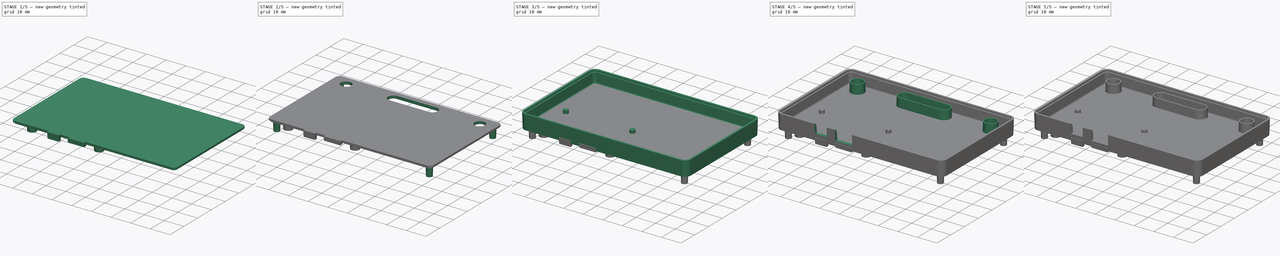
[diagram: build sequence overview — one tinted view per stage of 5, left to right]
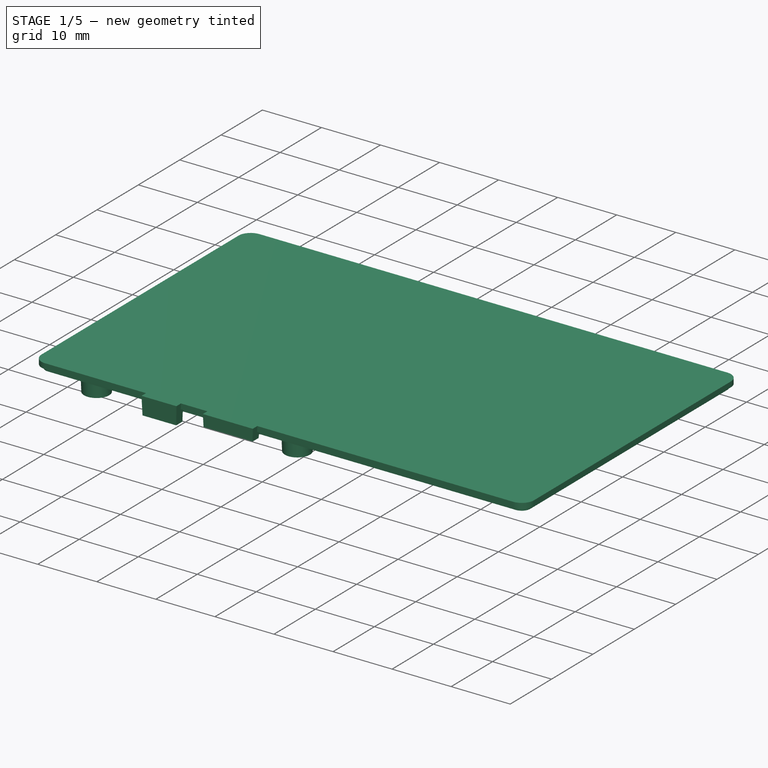
[diagram: stage 1 of 5 — iso view after this stage's code; geometry added in this stage tinted green]
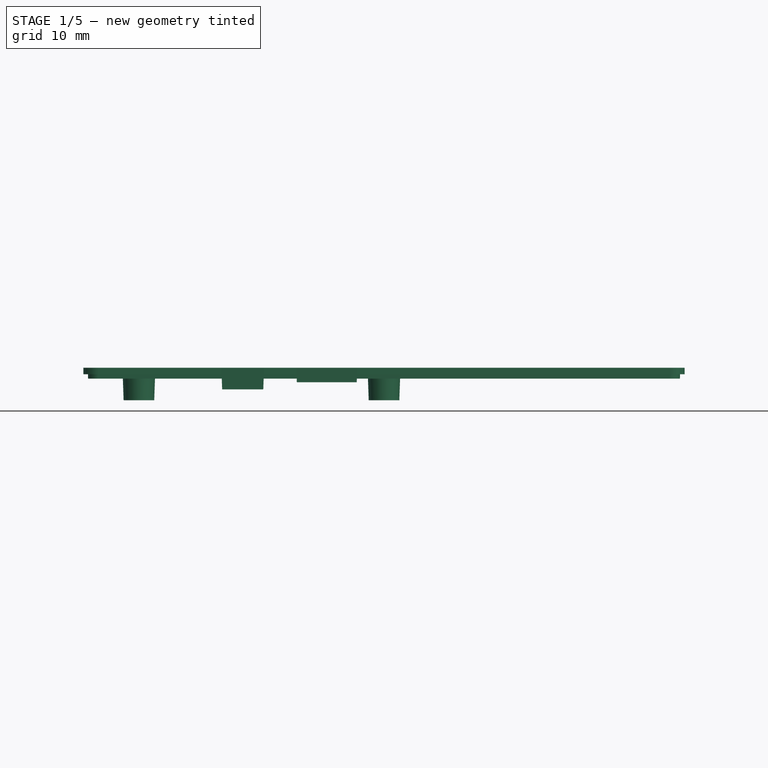
[diagram: stage 1 of 5 — front view after this stage's code; geometry added in this stage tinted green]
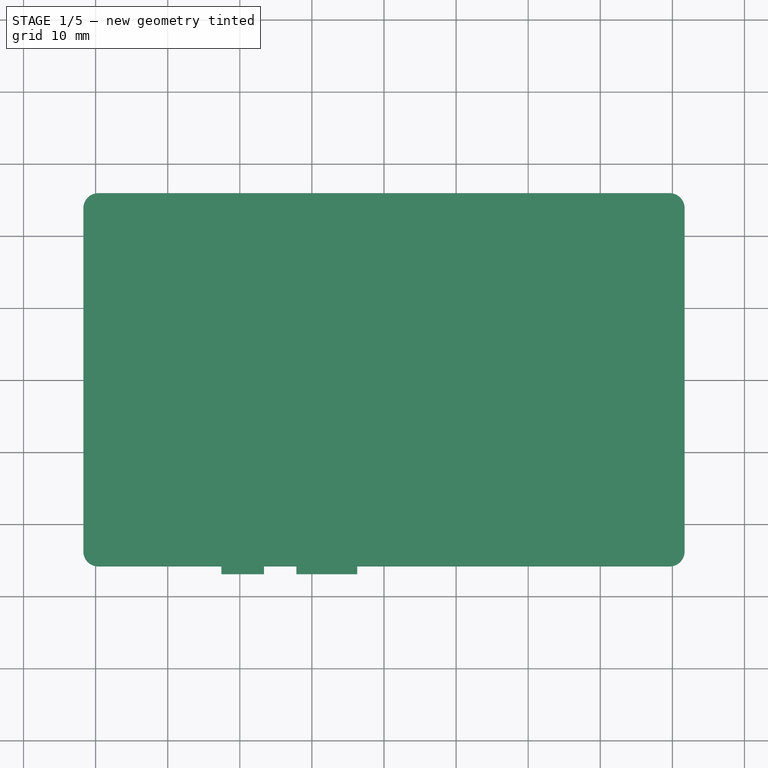
[diagram: stage 1 of 5 — top view after this stage's code; geometry added in this stage tinted green]
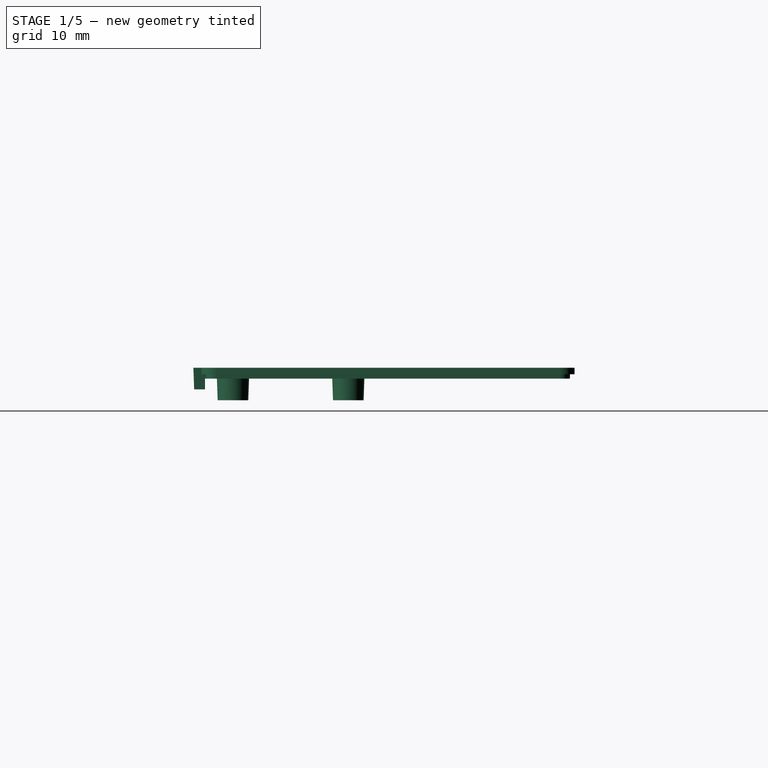
[diagram: stage 1 of 5 — right view after this stage's code; geometry added in this stage tinted green]
FCSTD DOCUMENT  (FreeCAD 0.18.1R)
Label: case
License: All rights reserved
LicenseURL: http://en.wikipedia.org/wiki/All_rights_reserved
objects: Sketcher::SketchObject×25, PartDesign::Draft×12, PartDesign::Pad×7, PartDesign::Plane×7, PartDesign::Pocket×7, PartDesign::Hole×5, PartDesign::Fillet×4, PartDesign::Body×2, PartDesign::AdditiveLoft×2, Spreadsheet::Sheet×1
note: 92 computed .brp shape members not serialized (recipe doc carries the construction recipe); baked Part::Feature solids carry a one-line shape summary decoded from their .brp

FEATURE [Sketcher::SketchObject] Sketch005  label="USBHoleSketch"
  MapMode = 5
  Placement = pos=(0,0,7.6) rot=(0,0,1;0rad)
  Support = -> [DatumPlane005]
  expr: Constraints[11] = -Spreadsheet.CaseHeight / 2 + 3 * Spreadsheet.WallThickness / 2
  expr: Constraints[10] = Spreadsheet.USBHoleX - Spreadsheet.USBHoleWidth / 2
  expr: Constraints[8] = Spreadsheet.USBHoleWidth
  expr: Constraints[9] = Spreadsheet.WallThickness * 2
  sketch-geometry (4):
    g0: LineSegment StartX=-12.1875 StartY=-24.74 StartZ=0 EndX=-3.6875 EndY=-24.74 EndZ=0
    g1: LineSegment StartX=-3.6875 StartY=-24.74 StartZ=0 EndX=-3.6875 EndY=-27.74 EndZ=0
    g2: LineSegment StartX=-3.6875 StartY=-27.74 StartZ=0 EndX=-12.1875 EndY=-27.74 EndZ=0
    g3: LineSegment StartX=-12.1875 StartY=-27.74 StartZ=0 EndX=-12.1875 EndY=-24.74 EndZ=0
  constraints (12):
    c: Coincident(g0,g1)
    c: Coincident(g1,g2)
    c: Coincident(g2,g3)
    c: Coincident(g3,g0)
    c: Horizontal(g0)
    c: Horizontal(g2)
    c: Vertical(g1)
    c: Vertical(g3)
    c: DistanceX(g0,g0) = 8.5
    c: DistanceY(g1,g1) = 3
    c: DistanceX(g2) = -12.1875
    c: DistanceY(g0) = -24.74
FEATURE [Sketcher::SketchObject] Sketch006  label="PowerHoleSketch"
  MapMode = 5
  Placement = pos=(0,0,7.6) rot=(0,0,1;0rad)
  Support = -> [DatumPlane005]
  expr: Constraints[8] = Spreadsheet.PowerHoleWidth
  expr: Constraints[9] = Spreadsheet.WallThickness * 2
  expr: Constraints[11] = -Spreadsheet.CaseHeight / 2 + 3 * Spreadsheet.WallThickness / 2
  expr: Constraints[10] = Spreadsheet.PowerHoleX - Spreadsheet.PowerHoleWidth / 2
  sketch-geometry (4):
    g0: LineSegment StartX=-22.6 StartY=-24.74 StartZ=0 EndX=-16.6 EndY=-24.74 EndZ=0
    g1: LineSegment StartX=-16.6 StartY=-24.74 StartZ=0 EndX=-16.6 EndY=-27.74 EndZ=0
    g2: LineSegment StartX=-16.6 StartY=-27.74 StartZ=0 EndX=-22.6 EndY=-27.74 EndZ=0
    g3: LineSegment StartX=-22.6 StartY=-27.74 StartZ=0 EndX=-22.6 EndY=-24.74 EndZ=0
  constraints (12):
    c: Coincident(g0,g1)
    c: Coincident(g1,g2)
    c: Coincident(g2,g3)
    c: Coincident(g3,g0)
    c: Horizontal(g0)
    c: Horizontal(g2)
    c: Vertical(g1)
    c: Vertical(g3)
    c: DistanceX(g0,g0) = 6
    c: DistanceY(g1,g1) = 3
    c: DistanceX(g2) = -22.6
    c: DistanceY(g0) = -24.74
FEATURE [Sketcher::SketchObject] Sketch021
  AttachmentOffset = pos=(0,0,0) rot=(1,0,0;3.14159rad)
  MapMode = 5
  Placement = pos=(0,0,0) rot=(1,0,0;3.14159rad)
  Support = -> [DatumPlane]
  expr: Constraints[2] = Spreadsheet.Screw2X
  expr: Constraints[1] = -Spreadsheet.Screw2Y
  expr: Constraints[0] = Spreadsheet.ScrewRadius
  sketch-geometry (1):
    g0: Circle CenterX=-38.8 CenterY=22.99 CenterZ=0 NormalX=0 NormalY=0 NormalZ=1 AngleXU=0 Radius=0.88
  constraints (3):
    c: Radius(g0) = 0.88
    c: DistanceY(g0) = 22.99
    c: DistanceX(g0) = -38.8
FEATURE [Sketcher::SketchObject] Sketch022
  AttachmentOffset = pos=(0,0,0) rot=(1,0,0;3.14159rad)
  MapMode = 5
  Placement = pos=(0,0,0) rot=(1,0,0;3.14159rad)
  Support = -> [DatumPlane]
  expr: Constraints[2] = Spreadsheet.ScrewRadius
  expr: Constraints[1] = -Spreadsheet.Screw3Y
  expr: Constraints[0] = Spreadsheet.Screw3X
  sketch-geometry (1):
    g0: Circle CenterX=38.8 CenterY=22.99 CenterZ=0 NormalX=0 NormalY=0 NormalZ=1 AngleXU=0 Radius=0.88
  constraints (3):
    c: DistanceX(g0) = 38.8
    c: DistanceY(g0) = 22.99
    c: Radius(g0) = 0.88
FEATURE [Sketcher::SketchObject] Sketch023
  AttachmentOffset = pos=(0,0,0) rot=(1,0,0;3.14159rad)
  MapMode = 5
  Placement = pos=(0,0,0) rot=(1,0,0;3.14159rad)
  Support = -> [DatumPlane]
  expr: Constraints[2] = Spreadsheet.ScrewRadius
  expr: Constraints[1] = -Spreadsheet.Screw4Y
  expr: Constraints[0] = Spreadsheet.Screw4X
  sketch-geometry (1):
    g0: Circle CenterX=-38.8 CenterY=-22.99 CenterZ=0 NormalX=0 NormalY=0 NormalZ=1 AngleXU=0 Radius=0.88
  constraints (3):
    c: DistanceX(g0) = -38.8
    c: DistanceY(g0) = -22.99
    c: Radius(g0) = 0.88
FEATURE [Sketcher::SketchObject] Sketch024
  AttachmentOffset = pos=(0,0,0) rot=(1,0,0;3.14159rad)
  MapMode = 5
  Placement = pos=(0,0,0) rot=(1,0,0;3.14159rad)
  Support = -> [DatumPlane]
  expr: Constraints[2] = Spreadsheet.ScrewRadius
  expr: Constraints[1] = -Spreadsheet.Screw5Y
  expr: Constraints[0] = Spreadsheet.Screw5X
  sketch-geometry (1):
    g0: Circle CenterX=38.8 CenterY=-22.99 CenterZ=0 NormalX=0 NormalY=0 NormalZ=1 AngleXU=0 Radius=0.88
  constraints (3):
    c: DistanceX(g0) = 38.8
    c: DistanceY(g0) = -22.99
    c: Radius(g0) = 0.88
FEATURE [PartDesign::Plane] DatumPlane006  label="LidBottomDatumLid"
  Length = 96.6819
  MapMode = 2
  ResizeMode = 0
  Support = -> [XY_Plane001]
  Width = 66.1619
FEATURE [Sketcher::SketchObject] Sketch007  label="CreditCardSketch001"
  MapMode = 5
  Support = -> [DatumPlane006]
  expr: Constraints[41] = Spreadsheet.CaseHeight - Spreadsheet.WallThickness * 2 - Spreadsheet.Clearance * 2
  expr: Constraints[27] = Spreadsheet.PowerHoleWidth - Spreadsheet.Clearance * 2 + (Spreadsheet.CaseThickness - Spreadsheet.PowerHoleY) * sin(Spreadsheet.DraftAngle) * 2
  expr: Constraints[31] = Spreadsheet.USBHoleX
  expr: Constraints[28] = Spreadsheet.USBHoleWidth - Spreadsheet.Clearance * 2 + (Spreadsheet.CaseThickness - Spreadsheet.USBHoleY) * sin(Spreadsheet.DraftAngle) * 2
  expr: Constraints[29] = Spreadsheet.PowerHoleX
  expr: Constraints[26] = Spreadsheet.WallThickness + Spreadsheet.Clearance
  expr: Constraints[12] = Spreadsheet.CaseWidth - Spreadsheet.WallThickness * 2 - Spreadsheet.Clearance * 2
  expr: Constraints[11] = Spreadsheet.CornerRadius - Spreadsheet.WallThickness - Spreadsheet.Clearance
  sketch-geometry (18):
    g0: LineSegment StartX=-39.62 StartY=25.29 StartZ=0 EndX=39.62 EndY=25.29 EndZ=0
    g1: LineSegment StartX=41.1 StartY=23.81 StartZ=0 EndX=41.1 EndY=-23.81 EndZ=0
    g2: LineSegment StartX=-41.1 StartY=-23.81 StartZ=0 EndX=-41.1 EndY=23.81 EndZ=0
    g3: ArcOfCircle CenterX=-39.62 CenterY=23.81 CenterZ=0 NormalX=0 NormalY=0 NormalZ=1 AngleXU=0 Radius=1.48 StartAngle=1.5708 EndAngle=3.14159
    g4: ArcOfCircle CenterX=39.62 CenterY=23.81 CenterZ=0 NormalX=0 NormalY=0 NormalZ=1 AngleXU=0 Radius=1.48 StartAngle=1.022e-13 EndAngle=1.5708
    g5: ArcOfCircle CenterX=-39.62 CenterY=-23.81 CenterZ=0 NormalX=0 NormalY=0 NormalZ=1 AngleXU=0 Radius=1.48 StartAngle=3.14159 EndAngle=4.71239
    g6: ArcOfCircle CenterX=39.62 CenterY=-23.81 CenterZ=0 NormalX=0 NormalY=0 NormalZ=1 AngleXU=0 Radius=1.48 StartAngle=4.71239 EndAngle=6.28319
    g7: LineSegment StartX=-22.557 StartY=-25.29 StartZ=0 EndX=-22.557 EndY=-26.99 EndZ=0
    g8: LineSegment StartX=-22.557 StartY=-26.99 StartZ=0 EndX=-16.643 EndY=-26.99 EndZ=0
    g9: LineSegment StartX=-16.643 StartY=-26.99 StartZ=0 EndX=-16.643 EndY=-25.29 EndZ=0
    g10: LineSegment StartX=-12.162 StartY=-25.29 StartZ=0 EndX=-12.162 EndY=-26.99 EndZ=0
    g11: LineSegment StartX=-12.162 StartY=-26.99 StartZ=0 EndX=-3.713 EndY=-26.99 EndZ=0
    g12: LineSegment StartX=-3.713 StartY=-26.99 StartZ=0 EndX=-3.713 EndY=-25.29 EndZ=0
    g13: GeomPoint X=-19.6 Y=-26.99 Z=0
    g14: GeomPoint X=-7.9375 Y=-26.99 Z=0
    g15: LineSegment StartX=-39.62 StartY=-25.29 StartZ=0 EndX=-22.557 EndY=-25.29 EndZ=0
    g16: LineSegment StartX=-3.713 StartY=-25.29 StartZ=0 EndX=39.62 EndY=-25.29 EndZ=0
    g17: LineSegment StartX=-12.162 StartY=-25.29 StartZ=0 EndX=-16.643 EndY=-25.29 EndZ=0
  constraints (44):
    c: Horizontal(g0)
    c: Vertical(g1)
    c: Vertical(g2)
    c: Tangent(g0,g3) = 1.5708
    c: Tangent(g2,g3) = 1.5708
    c: Tangent(g0,g4) = 1.5708
    c: Tangent(g1,g4) = 1.5708
    c: Tangent(g2,g5) = 1.5708
    c: Tangent(g1,g6) = 1.5708
    c: Equal(g3,g4)
    c: Equal(g4,g6)
    c: Radius(g3) = 1.48
    c: DistanceX(g2,g1) = 82.2
    c: Symmetric(g2,g1,g-2)
    c: Vertical(g7)
    c: Coincident(g8,g7)
    c: Coincident(g9,g8)
    c: Vertical(g9)
    c: Horizontal(g11)
    c: Horizontal(g8)
    c: Horizontal(g8,g10)
    c: Coincident(g11,g10)
    c: Coincident(g11,g12)
    c: Vertical(g12)
    c: Vertical(g10)
    c: Horizontal(g9,g7)
    c: DistanceY(g9,g9) = 1.7
    c: DistanceX(g8,g8) = 5.9141
    c: DistanceX(g11,g11) = 8.44899
    c: DistanceX(g13) = -19.6
    c: Symmetric(g7,g8,g13)
    c: DistanceX(g14) = -7.9375
    c: Coincident(g15,g7)
    c: Horizontal(g15)
    c: Coincident(g16,g12)
    c: Tangent(g15,g5) = -1.5708
    c: Tangent(g16,g6) = -1.5708
    c: Coincident(g17,g10)
    c: Coincident(g17,g9)
    c: Horizontal(g17)
    c: Horizontal(g12,g10)
    c: DistanceY(g6,g0) = 50.58
    c: Symmetric(g0,g6,g-1)
    c: Symmetric(g10,g11,g14)
FEATURE [PartDesign::Pad] Pad002
  Length = 1.5
  Length2 = 100
  Profile = -> Sketch007
  Type = 0
  expr: Length = Spreadsheet.WallThickness
FEATURE [Sketcher::SketchObject] Sketch008
  AttachmentOffset = pos=(0,0,0) rot=(1,0,0;3.14159rad)
  MapMode = 5
  Placement = pos=(0,0,0) rot=(1,0,0;3.14159rad)
  Support = -> [DatumPlane006]
  expr: Constraints[12] = Spreadsheet.USBHoleX
  expr: Constraints[10] = Spreadsheet.CaseHeight / 2 - Spreadsheet.WallThickness * sin(Spreadsheet.DraftAngle)
  expr: Constraints[9] = Spreadsheet.WallThickness + (Spreadsheet.CaseThickness - Spreadsheet.WallThickness - Spreadsheet.USBHoleY - Spreadsheet.USBHoleHeight) * sin(Spreadsheet.DraftAngle)
  expr: Constraints[8] = Spreadsheet.USBHoleWidth - Spreadsheet.Clearance * 2 + (Spreadsheet.CaseThickness - Spreadsheet.WallThickness - Spreadsheet.USBHoleY) * sin(Spreadsheet.DraftAngle) * 2
  sketch-geometry (5):
    g0: LineSegment StartX=-3.76535 StartY=25.4202 StartZ=0 EndX=-12.1096 EndY=25.4202 EndZ=0
    g1: LineSegment StartX=-12.1096 StartY=25.4202 StartZ=0 EndX=-12.1096 EndY=26.9377 EndZ=0
    g2: LineSegment StartX=-12.1096 StartY=26.9377 StartZ=0 EndX=-3.76535 EndY=26.9377 EndZ=0
    g3: LineSegment StartX=-3.76535 StartY=26.9377 StartZ=0 EndX=-3.76535 EndY=25.4202 EndZ=0
    g4: GeomPoint X=-7.9375 Y=25.4202 Z=0
  constraints (13):
    c: Coincident(g0,g1)
    c: Coincident(g1,g2)
    c: Coincident(g2,g3)
    c: Coincident(g3,g0)
    c: Horizontal(g0)
    c: Horizontal(g2)
    c: Vertical(g1)
    c: Vertical(g3)
    c: DistanceX(g0,g0) = 8.3443
    c: DistanceY(g1,g1) = 1.51745
    c: DistanceY(g1) = 26.9377
    c: Symmetric(g0,g0,g4)
    c: DistanceX(g4) = -7.9375
FEATURE [Sketcher::SketchObject] Sketch009
  AttachmentOffset = pos=(0,0,0) rot=(1,0,0;3.14159rad)
  MapMode = 5
  Placement = pos=(0,0,0) rot=(1,0,0;3.14159rad)
  Support = -> [DatumPlane006]
  expr: Constraints[12] = Spreadsheet.PowerHoleX
  expr: Constraints[10] = Spreadsheet.CaseHeight / 2 - Spreadsheet.WallThickness * sin(Spreadsheet.DraftAngle)
  expr: Constraints[9] = Spreadsheet.WallThickness + (Spreadsheet.CaseThickness - Spreadsheet.WallThickness - Spreadsheet.PowerHoleY - Spreadsheet.PowerHoleHeight) * sin(Spreadsheet.DraftAngle)
  expr: Constraints[8] = Spreadsheet.PowerHoleWidth - Spreadsheet.Clearance * 2 + (Spreadsheet.CaseThickness - Spreadsheet.WallThickness - Spreadsheet.PowerHoleY) * sin(Spreadsheet.DraftAngle) * 2
  sketch-geometry (5):
    g0: LineSegment StartX=-16.6953 StartY=25.3853 StartZ=0 EndX=-22.5047 EndY=25.3853 EndZ=0
    g1: LineSegment StartX=-22.5047 StartY=25.3853 StartZ=0 EndX=-22.5047 EndY=26.9377 EndZ=0
    g2: LineSegment StartX=-22.5047 StartY=26.9377 StartZ=0 EndX=-16.6953 EndY=26.9377 EndZ=0
    g3: LineSegment StartX=-16.6953 StartY=26.9377 StartZ=0 EndX=-16.6953 EndY=25.3853 EndZ=0
    g4: GeomPoint X=-19.6 Y=25.3853 Z=0
  constraints (13):
    c: Coincident(g0,g1)
    c: Coincident(g1,g2)
    c: Coincident(g2,g3)
    c: Coincident(g3,g0)
    c: Horizontal(g0)
    c: Horizontal(g2)
    c: Vertical(g1)
    c: Vertical(g3)
    c: DistanceX(g0,g0) = 5.8094
    c: DistanceY(g1,g1) = 1.55235
    c: DistanceY(g2) = 26.9377
    c: Symmetric(g0,g0,g4)
    c: DistanceX(g4) = -19.6
FEATURE [Sketcher::SketchObject] Sketch010
  AttachmentOffset = pos=(0,0,-0.5) rot=(1,0,0;3.14159rad)
  MapMode = 5
  Placement = pos=(0,0,-0.5) rot=(1,0,0;3.14159rad)
  Support = -> [DatumPlane006]
  expr: Constraints[12] = Spreadsheet.USBHoleX
  expr: Constraints[10] = Spreadsheet.CaseHeight / 2 - (Spreadsheet.CaseThickness - Spreadsheet.USBHoleY - Spreadsheet.USBHoleHeight) * sin(Spreadsheet.DraftAngle)
  expr: Constraints[9] = Spreadsheet.WallThickness - Spreadsheet.WallThickness * sin(Spreadsheet.DraftAngle)
  expr: AttachmentOffset.Base.z = -(Spreadsheet.CaseThickness - Spreadsheet.WallThickness - Spreadsheet.USBHoleY - Spreadsheet.USBHoleHeight)
  expr: Constraints[8] = Spreadsheet.USBHoleWidth - Spreadsheet.Clearance * 2 + Spreadsheet.USBHoleHeight * sin(Spreadsheet.DraftAngle) * 2
  sketch-geometry (5):
    g0: LineSegment StartX=-3.7828 StartY=25.4726 StartZ=0 EndX=-12.0922 EndY=25.4726 EndZ=0
    g1: LineSegment StartX=-12.0922 StartY=25.4726 StartZ=0 EndX=-12.0922 EndY=26.9202 EndZ=0
    g2: LineSegment StartX=-12.0922 StartY=26.9202 StartZ=0 EndX=-3.7828 EndY=26.9202 EndZ=0
    g3: LineSegment StartX=-3.7828 StartY=26.9202 StartZ=0 EndX=-3.7828 EndY=25.4726 EndZ=0
    g4: GeomPoint X=-7.9375 Y=25.4726 Z=0
  constraints (13):
    c: Coincident(g0,g1)
    c: Coincident(g1,g2)
    c: Coincident(g2,g3)
    c: Coincident(g3,g0)
    c: Horizontal(g0)
    c: Horizontal(g2)
    c: Vertical(g1)
    c: Vertical(g3)
    c: DistanceX(g0,g0) = 8.3094
    c: DistanceY(g1,g1) = 1.44765
    c: DistanceY(g1) = 26.9202
    c: Symmetric(g0,g0,g4)
    c: DistanceX(g4) = -7.9375
FEATURE [Sketcher::SketchObject] Sketch011
  AttachmentOffset = pos=(0,0,-1.5) rot=(1,0,0;3.14159rad)
  MapMode = 5
  Placement = pos=(0,0,-1.5) rot=(1,0,0;3.14159rad)
  Support = -> [DatumPlane006]
  expr: Constraints[12] = Spreadsheet.PowerHoleX
  expr: Constraints[10] = Spreadsheet.CaseHeight / 2 - (Spreadsheet.CaseThickness - Spreadsheet.PowerHoleY - Spreadsheet.PowerHoleHeight) * sin(Spreadsheet.DraftAngle)
  expr: Constraints[9] = Spreadsheet.WallThickness
  expr: AttachmentOffset.Base.z = -(Spreadsheet.CaseThickness - Spreadsheet.WallThickness - Spreadsheet.PowerHoleY - Spreadsheet.PowerHoleHeight)
  expr: Constraints[8] = Spreadsheet.PowerHoleWidth - Spreadsheet.Clearance * 2 + Spreadsheet.PowerHoleHeight * sin(Spreadsheet.DraftAngle) * 2
  sketch-geometry (5):
    g0: LineSegment StartX=-16.7477 StartY=25.3853 StartZ=0 EndX=-22.4523 EndY=25.3853 EndZ=0
    g1: LineSegment StartX=-22.4523 StartY=25.3853 StartZ=0 EndX=-22.4523 EndY=26.8853 EndZ=0
    g2: LineSegment StartX=-22.4523 StartY=26.8853 StartZ=0 EndX=-16.7477 EndY=26.8853 EndZ=0
    g3: LineSegment StartX=-16.7477 StartY=26.8853 StartZ=0 EndX=-16.7477 EndY=25.3853 EndZ=0
    g4: GeomPoint X=-19.6 Y=25.3853 Z=0
  constraints (13):
    c: Coincident(g0,g1)
    c: Coincident(g1,g2)
    c: Coincident(g2,g3)
    c: Coincident(g3,g0)
    c: Horizontal(g0)
    c: Horizontal(g2)
    c: Vertical(g1)
    c: Vertical(g3)
    c: DistanceX(g0,g0) = 5.7047
    c: DistanceY(g1,g1) = 1.5
    c: DistanceY(g2) = 26.8853
    c: Symmetric(g0,g0,g4)
    c: DistanceX(g4) = -19.6
FEATURE [Sketcher::SketchObject] Sketch012  label="MountPostsSketch001"
  AttachmentOffset = pos=(0,0,0) rot=(1,0,0;3.14159rad)
  MapMode = 5
  Placement = pos=(0,0,0) rot=(1,0,0;3.14159rad)
  Support = -> [DatumPlane006]
  expr: Constraints[19] = Spreadsheet.PCBMountOuterRadius - Spreadsheet.WallThickness * 0.6
  expr: Constraints[11] = -Spreadsheet.PCBMount4Y
  expr: Constraints[9] = -Spreadsheet.PCBMount3Y
  expr: Constraints[8] = Spreadsheet.PCBMount3X
  expr: Constraints[7] = -Spreadsheet.PCBMount2Y
  expr: Constraints[6] = Spreadsheet.PCBMount2X
  expr: Constraints[10] = Spreadsheet.PCBMount4X
  expr: Constraints[5] = -Spreadsheet.PCBMount1Y
  expr: Constraints[4] = Spreadsheet.PCBMount1X
  expr: Constraints[3] = Spreadsheet.PCBMountOuterRadius
  sketch-geometry (8):
    g0: Circle CenterX=-34 CenterY=21.5 CenterZ=0 NormalX=0 NormalY=0 NormalZ=1 AngleXU=0 Radius=2.25
    g1: Circle CenterX=0 CenterY=21.5 CenterZ=0 NormalX=0 NormalY=0 NormalZ=1 AngleXU=0 Radius=2.25
    g2: Circle CenterX=-34 CenterY=5.5 CenterZ=0 NormalX=0 NormalY=0 NormalZ=1 AngleXU=0 Radius=2.25
    g3: Circle CenterX=0 CenterY=5.5 CenterZ=0 NormalX=0 NormalY=0 NormalZ=1 AngleXU=0 Radius=2.25
    g4: Circle CenterX=-34 CenterY=21.5 CenterZ=0 NormalX=0 NormalY=0 NormalZ=1 AngleXU=0 Radius=1.35
    g5: Circle CenterX=0 CenterY=21.5 CenterZ=0 NormalX=0 NormalY=0 NormalZ=1 AngleXU=0 Radius=1.35
    g6: Circle CenterX=-34 CenterY=5.5 CenterZ=0 NormalX=0 NormalY=0 NormalZ=1 AngleXU=0 Radius=1.35
    g7: Circle CenterX=0 CenterY=5.5 CenterZ=0 NormalX=0 NormalY=0 NormalZ=1 AngleXU=0 Radius=1.35
  constraints (20):
    c: Equal(g0,g1)
    c: Equal(g1,g2)
    c: Equal(g2,g3)
    c: Radius(g0) = 2.25
    c: DistanceX(g0) = -34
    c: DistanceY(g0) = 21.5
    c: DistanceX(g1) = 0
    c: DistanceY(g1) = 21.5
    c: DistanceX(g2) = -34
    c: DistanceY(g2) = 5.5
    c: DistanceX(g3) = 0
    c: DistanceY(g3) = 5.5
    c: Coincident(g4,g0)
    c: Coincident(g5,g1)
    c: Coincident(g6,g2)
    c: Coincident(g7,g3)
    c: Equal(g4,g5)
    c: Equal(g5,g7)
    c: Equal(g7,g6)
    c: Radius(g7) = 1.35
FEATURE [Sketcher::SketchObject] Sketch018
  MapMode = 5
  Support = -> [DatumPlane006]
  expr: Constraints[11] = Spreadsheet.Screw4X
  expr: Constraints[14] = Spreadsheet.Screw5Y
  expr: Constraints[9] = Spreadsheet.Screw3X
  expr: Constraints[8] = Spreadsheet.Screw2Y
  expr: Constraints[13] = Spreadsheet.Screw5X
  expr: Constraints[7] = Spreadsheet.Screw2X
  expr: Constraints[10] = Spreadsheet.Screw3Y
  expr: Constraints[2] = Spreadsheet.ScrewHoleRadius
  expr: Constraints[12] = Spreadsheet.Screw4Y
  expr: Constraints[1] = Spreadsheet.ScrewY
  expr: Constraints[0] = Spreadsheet.ScrewX
  sketch-geometry (5):
    g0: Circle CenterX=5 CenterY=0 CenterZ=0 NormalX=0 NormalY=0 NormalZ=1 AngleXU=0 Radius=0.675
    g1: Circle CenterX=-38.8 CenterY=-22.99 CenterZ=0 NormalX=0 NormalY=0 NormalZ=1 AngleXU=0 Radius=0.675
    g2: Circle CenterX=38.8 CenterY=-22.99 CenterZ=0 NormalX=0 NormalY=0 NormalZ=1 AngleXU=0 Radius=0.675
    g3: Circle CenterX=-38.8 CenterY=22.99 CenterZ=0 NormalX=0 NormalY=0 NormalZ=1 AngleXU=0 Radius=0.675
    g4: Circle CenterX=38.8 CenterY=22.99 CenterZ=0 NormalX=0 NormalY=0 NormalZ=1 AngleXU=0 Radius=0.675
  constraints (15):
    c: DistanceX(g0) = 5
    c: DistanceY(g0) = 0
    c: Radius(g0) = 0.675
    c: Equal(g3,g0)
    c: Equal(g0,g4)
    c: Equal(g4,g1)
    c: Equal(g1,g2)
    c: DistanceX(g1) = -38.8
    c: DistanceY(g1) = -22.99
    c: DistanceX(g2) = 38.8
    c: DistanceY(g2) = -22.99
    c: DistanceX(g3) = -38.8
    c: DistanceY(g3) = 22.99
    c: DistanceX(g4) = 38.8
    c: DistanceY(g4) = 22.99
FEATURE [Sketcher::SketchObject] Sketch020
  MapMode = 5
  Support = -> [DatumPlane006]
  expr: Constraints[11] = Spreadsheet.Screw4Y
  expr: Constraints[14] = Spreadsheet.Screw5X
  expr: Constraints[9] = Spreadsheet.Screw3Y
  expr: Constraints[8] = Spreadsheet.Screw2Y
  expr: Constraints[13] = Spreadsheet.Screw5Y
  expr: Constraints[7] = Spreadsheet.Screw2X
  expr: Constraints[10] = Spreadsheet.Screw3X
  expr: Constraints[2] = Spreadsheet.ScrewHoleRadius + Spreadsheet.WallThickness * 0.6
  expr: Constraints[12] = Spreadsheet.Screw4X
  expr: Constraints[1] = -Spreadsheet.ScrewY
  expr: Constraints[0] = Spreadsheet.ScrewX
  sketch-geometry (5):
    g0: Circle CenterX=5 CenterY=0 CenterZ=0 NormalX=0 NormalY=0 NormalZ=1 AngleXU=0 Radius=1.575
    g1: Circle CenterX=-38.8 CenterY=-22.99 CenterZ=0 NormalX=0 NormalY=0 NormalZ=1 AngleXU=0 Radius=1.575
    g2: Circle CenterX=38.8 CenterY=-22.99 CenterZ=0 NormalX=0 NormalY=0 NormalZ=1 AngleXU=0 Radius=1.575
    g3: Circle CenterX=-38.8 CenterY=22.99 CenterZ=0 NormalX=0 NormalY=0 NormalZ=1 AngleXU=0 Radius=1.575
    g4: Circle CenterX=38.8 CenterY=22.99 CenterZ=0 NormalX=0 NormalY=0 NormalZ=1 AngleXU=0 Radius=1.575
  constraints (15):
    c: DistanceX(g0) = 5
    c: DistanceY(g0) = 0
    c: Radius(g0) = 1.575
    c: Equal(g1,g2)
    c: Equal(g2,g3)
    c: Equal(g3,g4)
    c: Equal(g4,g0)
    c: DistanceX(g1) = -38.8
    c: DistanceY(g1) = -22.99
    c: DistanceY(g2) = -22.99
    c: DistanceX(g2) = 38.8
    c: DistanceY(g3) = 22.99
    c: DistanceX(g3) = -38.8
    c: DistanceY(g4) = 22.99
    c: DistanceX(g4) = 38.8
FEATURE [PartDesign::Plane] DatumPlane007  label="LidTopDatumLid"
  AttachmentOffset = pos=(0,0,1.5) rot=(0,0,1;0rad)
  Length = 96.6819
  MapMode = 5
  Placement = pos=(0,0,1.5) rot=(0,0,1;0rad)
  ResizeMode = 0
  Support = -> [DatumPlane006]
  Width = 66.1619
  expr: AttachmentOffset.Base.z = Spreadsheet.WallThickness
  expr: Placement.Base.z = Spreadsheet.WallThickness
FEATURE [PartDesign::Draft] Draft005
  Angle = 2
  Base = -> Pad002 [Face3,Face2,Face1,Face16,Face15,Face14,Face13,Face12,Face11,Face10,Face9,Face8,Face7,Face6,Face5,Face4]
  BaseFeature = -> Pad002
  NeutralPlane = -> DatumPlane007
  Reversed = true
FEATURE [PartDesign::Body] Body  label="Case"
  Group = -> [DatumPlane,DatumPlane001,DatumPlane002,DatumPlane004,DatumPlane005,Sketch,Pad,Draft,Sketch001,Pocket,Pocket006,Sketch025,Draft001,Fillet,Sketch002,Sketch003,Pad001,Sketch004,Draft002,Sketch005,Sketch006,Pocket001,Pocket002,Draft003,Draft004,Sketch013,Sketch014,Pad004,Pocket003,Draft007,Sketch016,Hole,Fillet001,Sketch021,Sketch022,Sketch023,Sketch024,Hole001,Hole002,Hole003,Hole004,Draft009]
  Origin = -> Origin
  Tip = -> Draft009
FEATURE [Sketcher::SketchObject] Sketch026  label="CreditCardSketch002"
  MapMode = 5
  Placement = pos=(0,0,1.5) rot=(0,0,1;0rad)
  Support = -> [DatumPlane007]
  expr: Constraints[15] = Spreadsheet.CaseHeight - Spreadsheet.WallThickness * 0.6 * 2 - Spreadsheet.Clearance * 2
  expr: Constraints[12] = Spreadsheet.CaseWidth - Spreadsheet.WallThickness * 0.6 * 2 - Spreadsheet.Clearance * 2
  expr: Constraints[11] = Spreadsheet.CornerRadius - Spreadsheet.WallThickness * 0.6 - Spreadsheet.Clearance
  sketch-geometry (8):
    g0: LineSegment StartX=-39.62 StartY=25.89 StartZ=0 EndX=39.62 EndY=25.89 EndZ=0
    g1: LineSegment StartX=41.7 StartY=23.81 StartZ=0 EndX=41.7 EndY=-23.81 EndZ=0
    g2: LineSegment StartX=-41.7 StartY=-23.81 StartZ=0 EndX=-41.7 EndY=23.81 EndZ=0
    g3: ArcOfCircle CenterX=-39.62 CenterY=23.81 CenterZ=0 NormalX=0 NormalY=0 NormalZ=1 AngleXU=0 Radius=2.08 StartAngle=1.5708 EndAngle=3.14159
    g4: ArcOfCircle CenterX=39.62 CenterY=23.81 CenterZ=0 NormalX=0 NormalY=0 NormalZ=1 AngleXU=0 Radius=2.08 StartAngle=1.028e-13 EndAngle=1.5708
    g5: ArcOfCircle CenterX=-39.62 CenterY=-23.81 CenterZ=0 NormalX=0 NormalY=0 NormalZ=1 AngleXU=0 Radius=2.08 StartAngle=3.14159 EndAngle=4.71239
    g6: ArcOfCircle CenterX=39.62 CenterY=-23.81 CenterZ=0 NormalX=0 NormalY=0 NormalZ=1 AngleXU=0 Radius=2.08 StartAngle=4.71239 EndAngle=6.28319
    g7: LineSegment StartX=-39.62 StartY=-25.89 StartZ=0 EndX=39.62 EndY=-25.89 EndZ=0
  constraints (18):
    c: Horizontal(g0)
    c: Vertical(g1)
    c: Vertical(g2)
    c: Tangent(g0,g3) = 1.5708
    c: Tangent(g2,g3) = 1.5708
    c: Tangent(g0,g4) = 1.5708
    c: Tangent(g1,g4) = 1.5708
    c: Tangent(g2,g5) = 1.5708
    c: Tangent(g1,g6) = 1.5708
    c: Equal(g3,g4)
    c: Equal(g4,g6)
    c: Radius(g3) = 2.08
    c: DistanceX(g2,g1) = 83.4
    c: Symmetric(g2,g1,g-2)
    c: Tangent(g7,g6) = -1.5708
    c: DistanceY(g6,g0) = 51.78
    c: Symmetric(g0,g6,g-1)
    c: Tangent(g7,g5) = -1.5708
FEATURE [PartDesign::Pad] Pad006
  BaseFeature = -> Draft005
  Length = 0.9
  Length2 = 100
  Profile = -> Sketch026
  Reversed = true
  Type = 0
  expr: Length = Spreadsheet.WallThickness * 0.6
FEATURE [PartDesign::AdditiveLoft] AdditiveLoft
  BaseFeature = -> Pad006
  Closed = false
  Profile = -> Sketch008
  Ruled = false
  Sections = -> [Sketch010]
FEATURE [PartDesign::AdditiveLoft] AdditiveLoft001
  BaseFeature = -> AdditiveLoft
  Closed = false
  Profile = -> Sketch009
  Ruled = false
  Sections = -> [Sketch011]
FEATURE [PartDesign::Pad] Pad003
  BaseFeature = -> AdditiveLoft001
  Length = 3
  Length2 = 100
  Profile = -> Sketch012
  Type = 0
  expr: Length = Spreadsheet.CaseThickness - Spreadsheet.WallThickness * 2 - Spreadsheet.PCBSubstrateThickness
FEATURE [PartDesign::Draft] Draft006
  Angle = 2
  Base = -> Pad003 [Face22,Face19,Face20,Face21,Face54,Face55,Face53,Face56]
  BaseFeature = -> Pad003
  NeutralPlane = -> Pad003 [Face4]
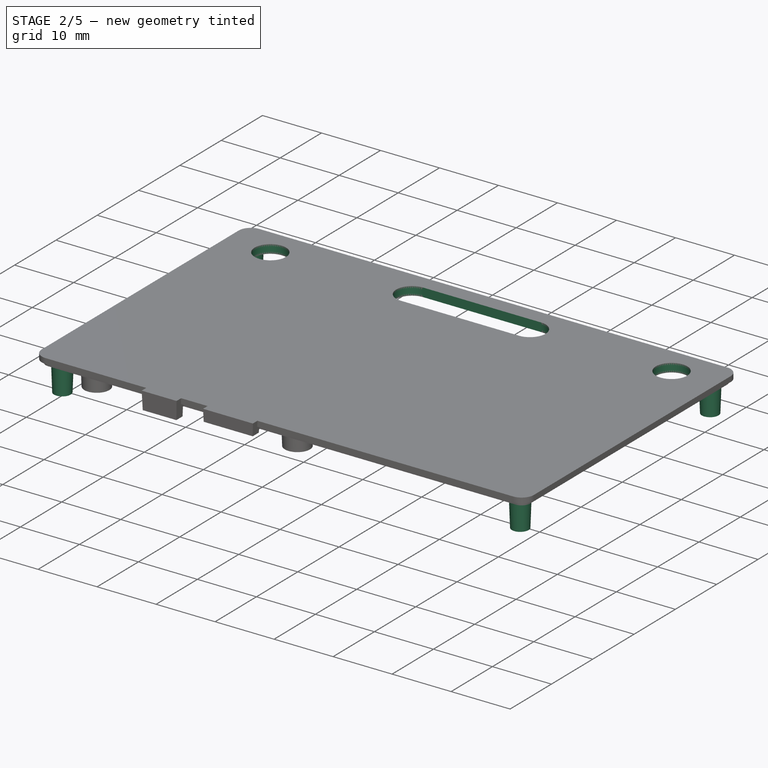
[diagram: stage 2 of 5 — iso view after this stage's code; geometry added in this stage tinted green]
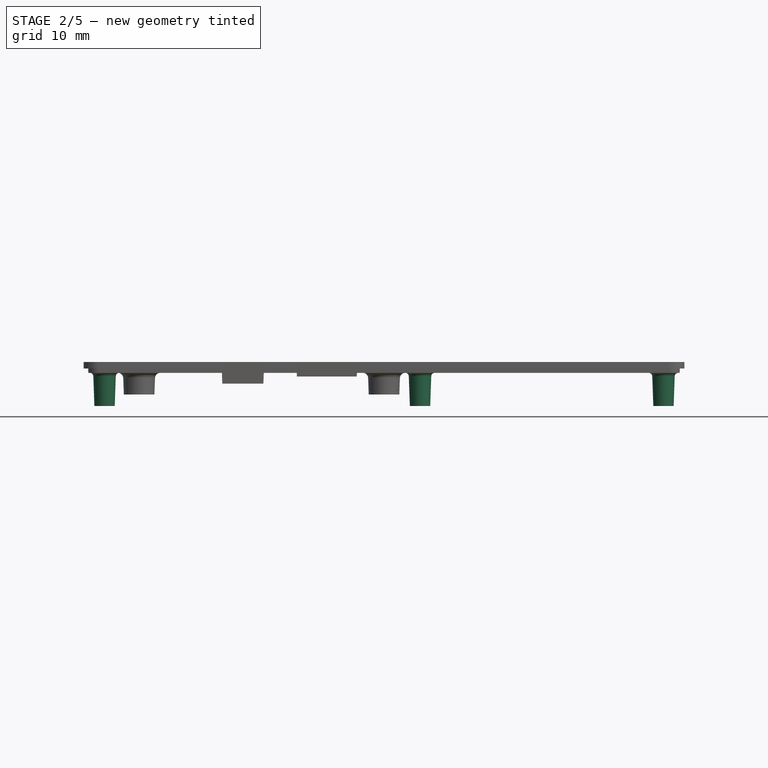
[diagram: stage 2 of 5 — front view after this stage's code; geometry added in this stage tinted green]
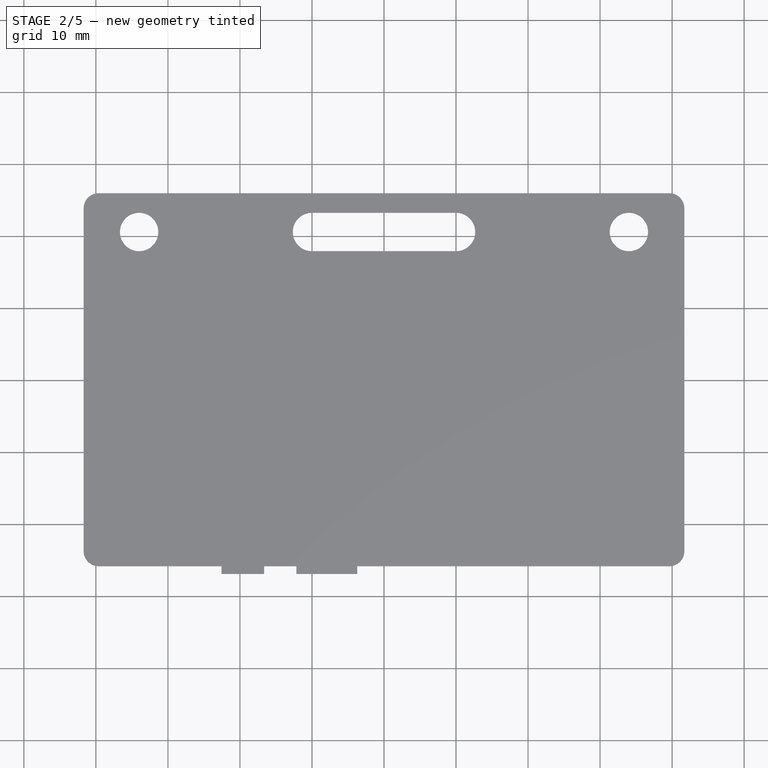
[diagram: stage 2 of 5 — top view after this stage's code; geometry added in this stage tinted green]
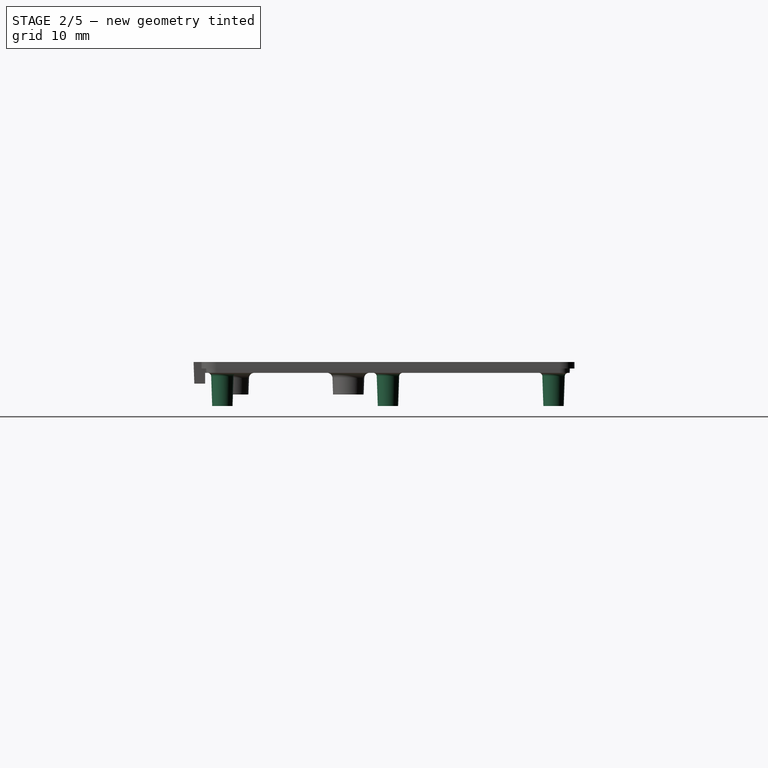
[diagram: stage 2 of 5 — right view after this stage's code; geometry added in this stage tinted green]
FEATURE [PartDesign::Pocket] Pocket004
  BaseFeature = -> Draft006
  Length = 1.5
  Length2 = 100
  Profile = -> Sketch015
  Type = 0
  expr: Length = Spreadsheet.WallThickness
FEATURE [PartDesign::Draft] Draft008
  Angle = 2
  Base = -> Pocket004 [Face28,Face21,Face25]
  BaseFeature = -> Pocket004
  NeutralPlane = -> DatumPlane007
  Reversed = true
FEATURE [PartDesign::Fillet] Fillet003
  Base = -> Draft008 [Edge20,Edge28,Edge21,Edge27,Face65,Face68,Face66,Face67]
  BaseFeature = -> Draft008
  Radius = 0.75
  expr: Radius = Spreadsheet.WallThickness / 2
FEATURE [PartDesign::Pad] Pad005
  BaseFeature = -> Fillet003
  Length = 4.6
  Length2 = 100
  Profile = -> Sketch020
  Reversed = true
  Type = 0
  expr: Length = Spreadsheet.InnerThickness
FEATURE [PartDesign::Pocket] Pocket005
  BaseFeature = -> Pad005
  Length = 4.6
  Length2 = 100
  Profile = -> Sketch018
  Type = 0
  expr: Length = Spreadsheet.InnerThickness
FEATURE [PartDesign::Draft] Draft010
  Angle = 2
  Base = -> Pocket005 [Face18,Face26,Face30,Face31,Face32]
  BaseFeature = -> Pocket005
  NeutralPlane = -> DatumPlane006
  Reversed = true
  expr: Angle = Spreadsheet.DraftAngle
FEATURE [PartDesign::Draft] Draft011
  Angle = 0.25
  Base = -> Draft010 [Face79,Face69,Face73,Face78,Face77]
  BaseFeature = -> Draft010
  NeutralPlane = -> DatumPlane006
  Reversed = true
  expr: Angle = Spreadsheet.MinimumDraftAngle
FEATURE [PartDesign::Fillet] Fillet004
  Base = -> Draft011 [Edge31,Edge17,Edge30,Edge29,Face80,Face86,Face87,Face88,Face82,Edge25]
  BaseFeature = -> Draft011
  Radius = 0.5
  expr: Radius = Spreadsheet.WallThickness / 3
FEATURE [PartDesign::Body] Body001  label="Lid"
  Group = -> [DatumPlane006,DatumPlane007,Sketch007,Pad002,Sketch026,Sketch008,Sketch009,Draft005,Pad006,Sketch010,Sketch011,AdditiveLoft,AdditiveLoft001,Sketch012,Pad003,Draft006,Sketch015,Pocket004,Draft008,Sketch018,Sketch020,Fillet003,Pad005,Pocket005,Draft010,Draft011,Fillet004]
  Origin = -> Origin001
  Placement = pos=(0,0,6.1) rot=(0,0,1;0rad)
  Tip = -> Fillet004
  expr: Placement.Base.z = Spreadsheet.CaseThickness - Spreadsheet.WallThickness
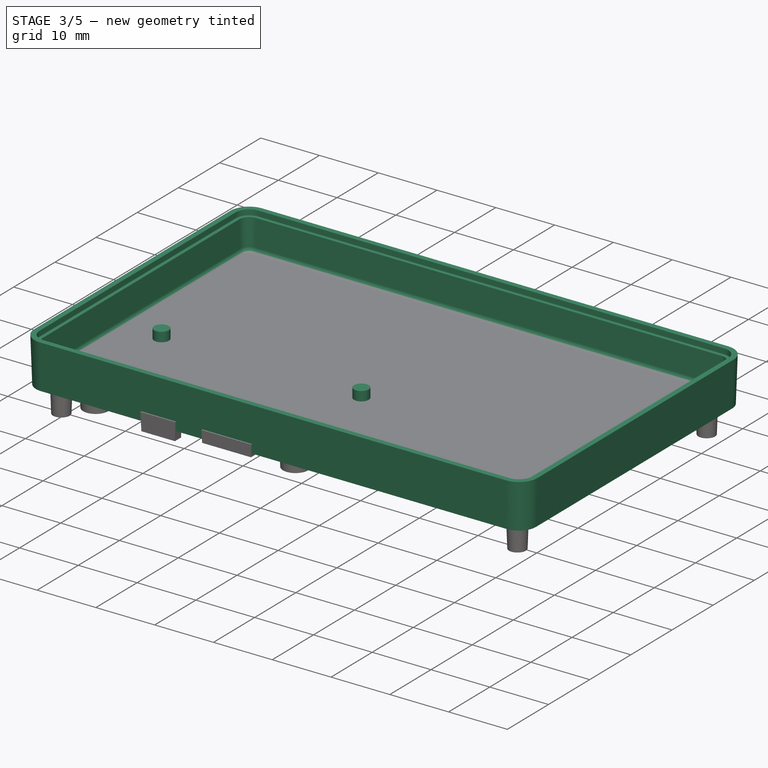
[diagram: stage 3 of 5 — iso view after this stage's code; geometry added in this stage tinted green]
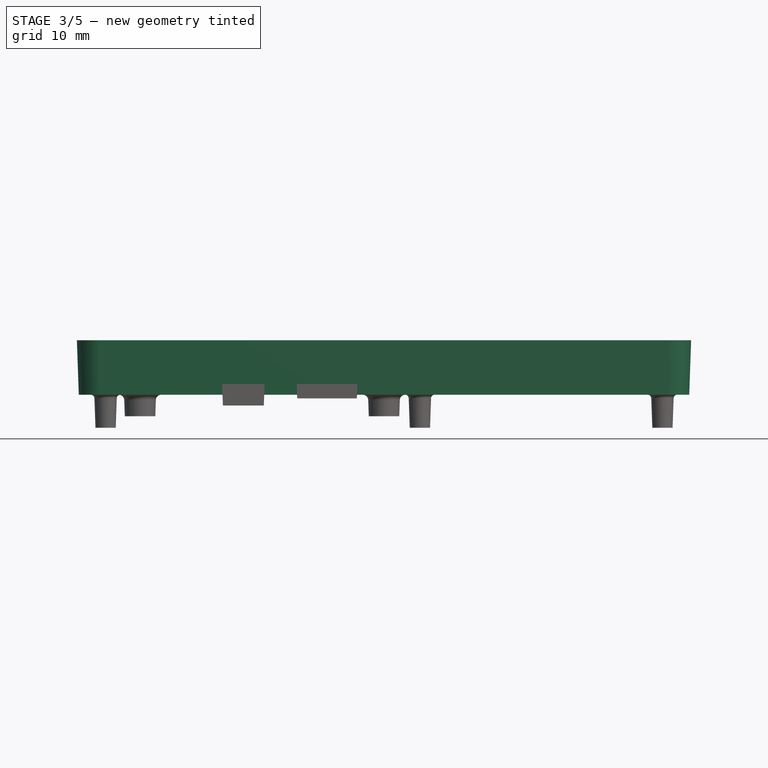
[diagram: stage 3 of 5 — front view after this stage's code; geometry added in this stage tinted green]
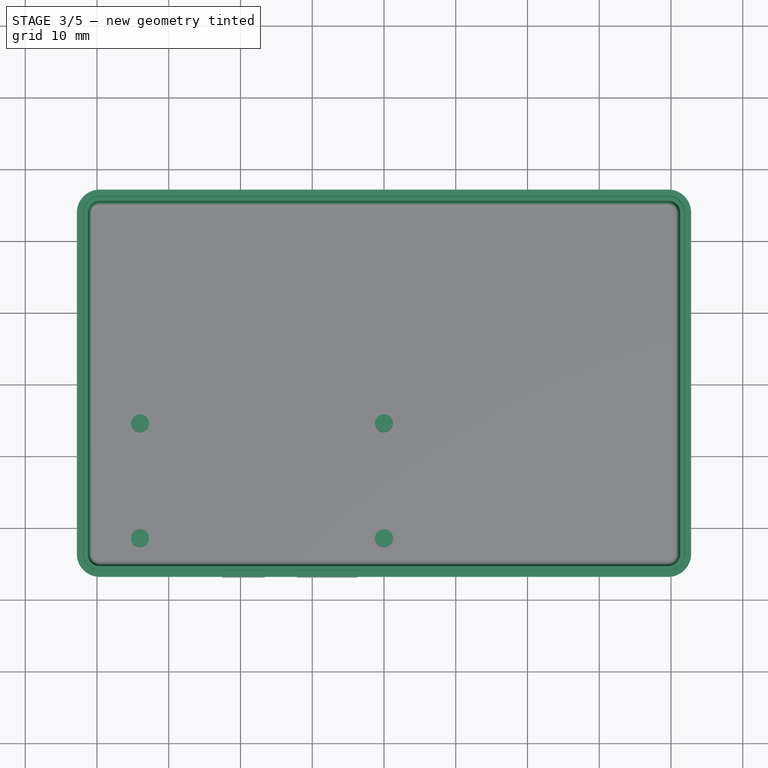
[diagram: stage 3 of 5 — top view after this stage's code; geometry added in this stage tinted green]
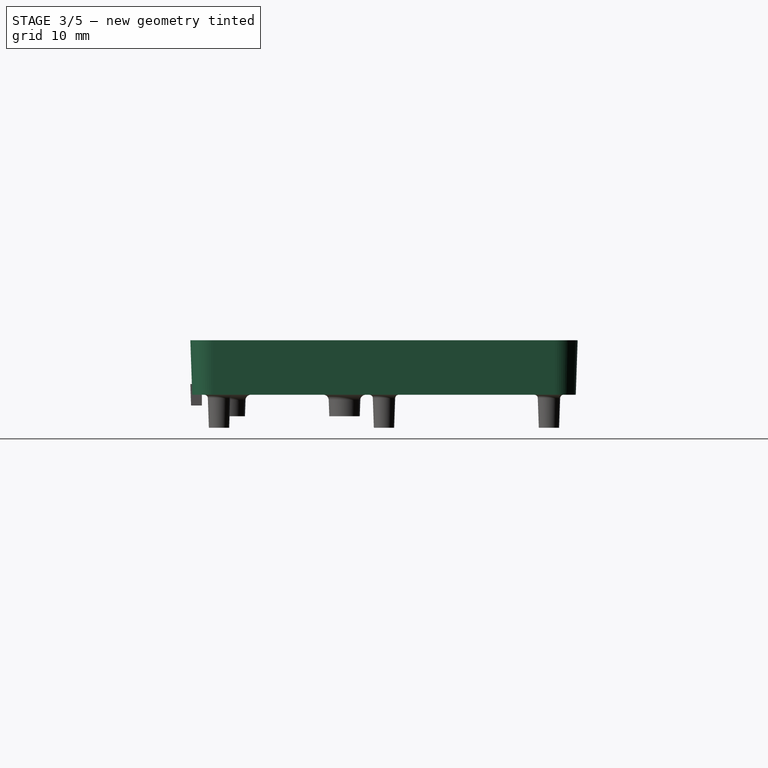
[diagram: stage 3 of 5 — right view after this stage's code; geometry added in this stage tinted green]
FEATURE [Spreadsheet::Sheet] Spreadsheet
  cells = A2=Case Width/Height; B2(CaseWidth)==85.59999999999999mm; C2(CaseHeight)==53.98mm; A3=Wall thickness; B3(WallThickness)==1.5mm; A4=Corner radius; B4(CornerRadius)==3.18mm; A5=Draft angle (degrees); B5(DraftAngle)=2; C5(MinimumDraftAngle)=0.25; A6=Case thickness; B6(CaseThickness)==B3 * 2 + B24; A7=Clearance; B7(Clearance)==0.2mm; A8=PCB Width/Height; B8(PCBWidth)==40mm; C8(PCBHeight)==40mm; A9=PCB X/Y; B9(PCBX)==-17mm; C9(PCBY)==-4.5mm; A10=PCB Substrate thickness; B10(PCBSubstrateThickness)==1.6mm; A11=PCB Component Thickness; B11(PCBComponentThickness)==3mm; A12=PCB Thickness (total); B12(PCBThickness)==PCBSubstrateThickness + PCBComponentThickness; A13=PCB Mount Hole 1 X/Y (rel/abs); B13(PCBMount1XRelative)==-17mm; C13(PCBMount1YRelative)==-17mm; D13(PCBMount1X)==PCBMount1XRelative + PCBX; E13(PCBMount1Y)==PCBMount1YRelative + PCBY; A14=PCB Mount Hole 2 X/Y; B14(PCBMount2XRelative)==17mm; C14(PCBMount2YRelative)==-17mm; D14(PCBMount2X)==PCBMount2XRelative + PCBX; E14(PCBMount2Y)==PCBMount2YRelative + PCBY; A15=PCB Mount Hole 3 X/Y; B15(PCBMount3XRelative)==-17mm; C15(PCBMount3YRelative)==-1mm; D15(PCBMount3X)==PCBMount3XRelative + PCBX; E15(PCBMount3Y)==PCBMount3YRelative + PCBY; A16=PCB Mount Hole 4 X/Y; B16(PCBMount4XRelative)==17mm; C16(PCBMount4YRelative)==-1mm; D16(PCBMount4X)==PCBMount4XRelative + PCBX; E16(PCBMount4Y)==PCBMount4YRelative + PCBY; A17=PCB Mount Inner Diameter/Radius; B17(PCBMountInnerDiameter)==2.5mm; C17(PCBMountInnerRadius)==PCBMountInnerDiameter / 2; A18=PCB Mount Outer Diameter/Radius; B18(PCBMountOuterDiameter)==4.5mm; C18(PCBMountOuterRadius)==PCBMountOuterDiameter / 2; A20=Battery W/H; B20(BatteryWidth)==30mm; C20(BatteryHeight)==35mm; A21=Battery Thickness; B21(BatteryThickness)==4mm + 0.5mm; A22=Battery X/Y; B22(BatteryX)==22mm; C22(BatteryY)==-4.5mm; A24=Inner Thickness (max); B24(InnerThickness)==max(PCBThickness; BatteryThickness); A26=USB Hole X/Y (relative/absolute); B26(USBHoleXRelative)==9.0625mm; C26(USBHoleYRelative)==-0.5mm; D26(USBHoleX)==USBHoleXRelative + PCBX; E26(USBHoleY)==USBHoleYRelative + PCBSubstrateThickness + WallThickness; A27=USB Hole W/H; B27(USBHoleWidth)==8.5mm; C27(USBHoleHeight)==3mm; A29=Power Hole X/Y (relative/absolute); B29(PowerHoleXRelative)==-2.6mm; C29(PowerHoleYRelative)==0mm; D29(PowerHoleX)==PowerHoleXRelative + PCBX; E29(PowerHoleY)==PowerHoleYRelative + PCBSubstrateThickness + WallThickness; A30=Power Hole W/H; B30(PowerHoleWidth)==6mm; C30(PowerHoleHeight)==1.5mm; A32=Slot Length/Diameter/Radius; B32(SlotLength)==20mm; C32(SlotDiameter)==5mm; D32(SlotRadius)==SlotDiameter / 2; A33=Slot X/Y; B33(SlotX)==0mm; C33(SlotY)==20.5mm; A35=Hole Diameter/Radius; B35(HoleDiameter)==SlotDiameter; C35(HoleRadius)==HoleDiameter / 2; A36=Hole 1 X/Y; B36(Hole1X)==-34mm; C36(Hole1Y)==SlotY; A37=Hole 2 X/Y; B37(Hole2X)==-Hole1X; C37(Hole2Y)==SlotY; A39=Screw Diameter/Radius; B39(ScrewDiameter)==1.76mm; C39(ScrewRadius)==ScrewDiameter / 2; A40=Screw Hole Diameter/Radius; B40(ScrewHoleDiameter)==1.35mm; C40(ScrewHoleRadius)==ScrewHoleDiameter / 2; A41=Screw Countersink Diameter/Radius; B41(ScrewCountersinkDiameter)==3mm; C41(ScrewCountersinkRadius)==ScrewCountersinkDiameter / 2; A42=Screw Countersink Depth/Angle; B42(ScrewCountersinkDepth)==0.8mm; C42(ScrewCountersinkAngle)=90; A43=Screw Length; B43(ScrewLength)==6mm; A45=Screw X/Y; B45(ScrewX)==5mm; C45(ScrewY)==0mm; A46=Screw 2 X/Y; B46(Screw2X)==-CaseWidth / 2 + ScrewDistanceFromWall; C46(Screw2Y)==-CaseHeight / 2 + ScrewDistanceFromWall; A47=Screw 3 X/Y; B47(Screw3X)==CaseWidth / 2 - ScrewDistanceFromWall; C47(Screw3Y)==-CaseHeight / 2 + ScrewDistanceFromWall; A48=Screw 4 X/Y; B48(Screw4X)==-CaseWidth / 2 + ScrewDistanceFromWall; C48(Screw4Y)==CaseHeight / 2 - ScrewDistanceFromWall; A49=Screw 5 X/Y; B49(Screw5X)==CaseWidth / 2 - ScrewDistanceFromWall; C49(Screw5Y)==CaseHeight / 2 - ScrewDistanceFromWall; A50=Screw Distance From Wall; B50(ScrewDistanceFromWall)==4mm
FEATURE [Sketcher::SketchObject] Sketch  label="CreditCardSketch"
  MapMode = 5
  Support = -> [XY_Plane]
  expr: Constraints[15] = Spreadsheet.CaseHeight
  expr: Constraints[14] = Spreadsheet.CaseWidth
  expr: Constraints[13] = Spreadsheet.CornerRadius
  sketch-geometry (8):
    g0: LineSegment StartX=-39.62 StartY=26.99 StartZ=0 EndX=39.62 EndY=26.99 EndZ=0
    g1: LineSegment StartX=42.8 StartY=23.81 StartZ=0 EndX=42.8 EndY=-23.81 EndZ=0
    g2: LineSegment StartX=39.62 StartY=-26.99 StartZ=0 EndX=-39.62 EndY=-26.99 EndZ=0
    g3: LineSegment StartX=-42.8 StartY=-23.81 StartZ=0 EndX=-42.8 EndY=23.81 EndZ=0
    g4: ArcOfCircle CenterX=-39.62 CenterY=23.81 CenterZ=0 NormalX=0 NormalY=0 NormalZ=1 AngleXU=0 Radius=3.18 StartAngle=1.5708 EndAngle=3.14159
    g5: ArcOfCircle CenterX=39.62 CenterY=23.81 CenterZ=0 NormalX=0 NormalY=0 NormalZ=1 AngleXU=0 Radius=3.18 StartAngle=0 EndAngle=1.5708
    g6: ArcOfCircle CenterX=-39.62 CenterY=-23.81 CenterZ=0 NormalX=0 NormalY=0 NormalZ=1 AngleXU=0 Radius=3.18 StartAngle=3.14159 EndAngle=4.71239
    g7: ArcOfCircle CenterX=39.62 CenterY=-23.81 CenterZ=0 NormalX=0 NormalY=0 NormalZ=1 AngleXU=0 Radius=3.18 StartAngle=4.71239 EndAngle=6.28319
  constraints (18):
    c: Horizontal(g0)
    c: Horizontal(g2)
    c: Vertical(g1)
    c: Vertical(g3)
    c: Tangent(g0,g4) = 1.5708
    c: Tangent(g3,g4) = 1.5708
    c: Tangent(g0,g5) = 1.5708
    c: Tangent(g1,g5) = 1.5708
    c: Tangent(g3,g6) = 1.5708
    c: Tangent(g2,g6) = 1.5708
    c: Tangent(g1,g7) = 1.5708
    c: Tangent(g2,g7) = 1.5708
    c: Equal(g4,g5)
    c: Radius(g4) = 3.18
    c: DistanceX(g3,g1) = 85.6
    c: DistanceY(g2,g0) = 53.98
    c: Symmetric(g0,g2,g-1)
    c: Symmetric(g3,g1,g-2)
FEATURE [PartDesign::Pad] Pad
  Length = 7.6
  Length2 = 100
  Profile = -> Sketch
  Type = 0
  expr: Length = Spreadsheet.CaseThickness
FEATURE [PartDesign::Draft] Draft
  Angle = 2
  Base = -> Pad [Face7,Face8,Face1,Face2,Face3,Face4,Face5,Face6]
  BaseFeature = -> Pad
  NeutralPlane = -> Pad [Face10]
FEATURE [PartDesign::Plane] DatumPlane  label="BottomDatum"
  Length = 99.1951
  MapMode = 2
  ResizeMode = 0
  Width = 67.5751
FEATURE [Sketcher::SketchObject] Sketch016
  AttachmentOffset = pos=(0,0,0) rot=(1,0,0;3.14159rad)
  MapMode = 5
  Placement = pos=(0,0,0) rot=(1,0,0;3.14159rad)
  Support = -> [DatumPlane]
  expr: Constraints[2] = -Spreadsheet.ScrewY
  expr: Constraints[1] = Spreadsheet.ScrewX
  expr: Constraints[0] = Spreadsheet.ScrewRadius
  sketch-geometry (1):
    g0: Circle CenterX=5 CenterY=0 CenterZ=0 NormalX=0 NormalY=0 NormalZ=1 AngleXU=0 Radius=0.88
  constraints (3):
    c: Radius(g0) = 0.88
    c: DistanceX(g0) = 5
    c: DistanceY(g0) = 0
FEATURE [PartDesign::Plane] DatumPlane001  label="InnerBottomDatum"
  Length = 99.1951
  MapMode = 2
  Placement = pos=(0,0,1.5) rot=(0,0,1;0rad)
  ResizeMode = 0
  Width = 67.5751
  expr: Placement.Base.z = Spreadsheet.WallThickness
FEATURE [Sketcher::SketchObject] Sketch002  label="MountPostsSketch"
  MapMode = 5
  Placement = pos=(0,0,1.5) rot=(0,0,1;0rad)
  Support = -> [DatumPlane001]
  expr: Constraints[11] = Spreadsheet.PCBMount4Y
  expr: Constraints[9] = Spreadsheet.PCBMount3Y
  expr: Constraints[8] = Spreadsheet.PCBMount3X
  expr: Constraints[7] = Spreadsheet.PCBMount2Y
  expr: Constraints[6] = Spreadsheet.PCBMount2X
  expr: Constraints[10] = Spreadsheet.PCBMount4X
  expr: Constraints[5] = Spreadsheet.PCBMount1Y
  expr: Constraints[4] = Spreadsheet.PCBMount1X
  expr: Constraints[3] = Spreadsheet.PCBMountInnerRadius
  sketch-geometry (4):
    g0: Circle CenterX=-34 CenterY=-21.5 CenterZ=0 NormalX=0 NormalY=0 NormalZ=1 AngleXU=0 Radius=1.25
    g1: Circle CenterX=0 CenterY=-21.5 CenterZ=0 NormalX=0 NormalY=0 NormalZ=1 AngleXU=0 Radius=1.25
    g2: Circle CenterX=-34 CenterY=-5.5 CenterZ=0 NormalX=0 NormalY=0 NormalZ=1 AngleXU=0 Radius=1.25
    g3: Circle CenterX=0 CenterY=-5.5 CenterZ=0 NormalX=0 NormalY=0 NormalZ=1 AngleXU=0 Radius=1.25
  constraints (12):
    c: Equal(g0,g1)
    c: Equal(g1,g2)
    c: Equal(g2,g3)
    c: Radius(g0) = 1.25
    c: DistanceX(g0) = -34
    c: DistanceY(g0) = -21.5
    c: DistanceX(g1) = 0
    c: DistanceY(g1) = -21.5
    c: DistanceX(g2) = -34
    c: DistanceY(g2) = -5.5
    c: DistanceX(g3) = 0
    c: DistanceY(g3) = -5.5
FEATURE [Sketcher::SketchObject] Sketch003  label="PCBPlaceholder"
  MapMode = 5
  Placement = pos=(0,0,1.5) rot=(0,0,1;0rad)
  Support = -> [DatumPlane001]
  expr: Constraints[11] = Spreadsheet.PCBY - Spreadsheet.PCBHeight / 2
  expr: Constraints[10] = Spreadsheet.PCBX - Spreadsheet.PCBWidth / 2
  expr: Constraints[9] = Spreadsheet.PCBHeight
  expr: Constraints[8] = Spreadsheet.PCBWidth
  sketch-geometry (4):
    g0: LineSegment StartX=3 StartY=15.5 StartZ=0 EndX=-37 EndY=15.5 EndZ=0
    g1: LineSegment StartX=-37 StartY=15.5 StartZ=0 EndX=-37 EndY=-24.5 EndZ=0
    g2: LineSegment StartX=-37 StartY=-24.5 StartZ=0 EndX=3 EndY=-24.5 EndZ=0
    g3: LineSegment StartX=3 StartY=-24.5 StartZ=0 EndX=3 EndY=15.5 EndZ=0
  constraints (12):
    c: Coincident(g0,g1)
    c: Coincident(g1,g2)
    c: Coincident(g2,g3)
    c: Coincident(g3,g0)
    c: Horizontal(g0)
    c: Horizontal(g2)
    c: Vertical(g1)
    c: Vertical(g3)
    c: DistanceX(g0,g0) = 40
    c: DistanceY(g3,g3) = 40
    c: DistanceX(g1) = -37
    c: DistanceY(g2) = -24.5
FEATURE [Sketcher::SketchObject] Sketch004  label="BatteryPlaceholder"
  MapMode = 5
  Placement = pos=(0,0,1.5) rot=(0,0,1;0rad)
  Support = -> [DatumPlane001]
  expr: Constraints[11] = Spreadsheet.BatteryY - Spreadsheet.BatteryHeight / 2
  expr: Constraints[10] = Spreadsheet.BatteryX - Spreadsheet.BatteryWidth / 2
  expr: Constraints[9] = Spreadsheet.BatteryHeight
  expr: Constraints[8] = Spreadsheet.BatteryWidth
  sketch-geometry (4):
    g0: LineSegment StartX=37 StartY=13 StartZ=0 EndX=7 EndY=13 EndZ=0
    g1: LineSegment StartX=7 StartY=13 StartZ=0 EndX=7 EndY=-22 EndZ=0
    g2: LineSegment StartX=7 StartY=-22 StartZ=0 EndX=37 EndY=-22 EndZ=0
    g3: LineSegment StartX=37 StartY=-22 StartZ=0 EndX=37 EndY=13 EndZ=0
  constraints (12):
    c: Coincident(g0,g1)
    c: Coincident(g1,g2)
    c: Coincident(g2,g3)
    c: Coincident(g3,g0)
    c: Horizontal(g0)
    c: Horizontal(g2)
    c: Vertical(g1)
    c: Vertical(g3)
    c: DistanceX(g0,g0) = 30
    c: DistanceY(g3,g3) = 35
    c: DistanceX(g1) = 7
    c: DistanceY(g2) = -22
FEATURE [Sketcher::SketchObject] Sketch013  label="HolesSketch"
  MapMode = 5
  Placement = pos=(0,0,1.5) rot=(0,0,1;0rad)
  Support = -> [DatumPlane001]
  expr: Constraints[17] = Spreadsheet.HoleRadius
  expr: Constraints[14] = Spreadsheet.Hole2X
  expr: Constraints[16] = Spreadsheet.Hole2Y
  expr: Constraints[13] = Spreadsheet.Hole1X
  expr: Constraints[7] = Spreadsheet.SlotRadius
  expr: Constraints[15] = Spreadsheet.Hole1Y
  expr: Constraints[12] = Spreadsheet.SlotY
  expr: Constraints[10] = Spreadsheet.SlotX
  expr: Constraints[6] = Spreadsheet.SlotLength
  sketch-geometry (8):
    g0: ArcOfCircle CenterX=-10 CenterY=20.5 CenterZ=0 NormalX=0 NormalY=0 NormalZ=1 AngleXU=0 Radius=2.5 StartAngle=1.5708 EndAngle=4.71239
    g1: ArcOfCircle CenterX=10 CenterY=20.5 CenterZ=0 NormalX=0 NormalY=0 NormalZ=1 AngleXU=0 Radius=2.5 StartAngle=4.71239 EndAngle=7.85398
    g2: LineSegment StartX=-10 StartY=18 StartZ=0 EndX=10 EndY=18 EndZ=0
    g3: LineSegment StartX=-10 StartY=23 StartZ=0 EndX=10 EndY=23 EndZ=0
    g4: Circle CenterX=-34 CenterY=20.5 CenterZ=0 NormalX=0 NormalY=0 NormalZ=1 AngleXU=0 Radius=2.5
    g5: Circle CenterX=34 CenterY=20.5 CenterZ=0 NormalX=0 NormalY=0 NormalZ=1 AngleXU=0 Radius=2.5
    g6: LineSegment [constr] StartX=-10 StartY=20.5 StartZ=0 EndX=10 EndY=20.5 EndZ=0
    g7: GeomPoint X=0 Y=20.5 Z=0
  constraints (19):
    c: Tangent(g0,g3) = 1.5708
    c: Tangent(g0,g2) = -1.5708
    c: Tangent(g2,g1) = -1.5708
    c: Tangent(g3,g1) = 1.5708
    c: Horizontal(g2)
    c: Equal(g0,g1)
    c: DistanceX(g0,g1) = 20
    c: Radius(g1) = 2.5
    c: Coincident(g6,g0)
    c: Symmetric(g0,g6,g7)
    c: DistanceX(g7) = 0
    c: Coincident(g6,g1)
    c: DistanceY(g7) = 20.5
    c: DistanceX(g4) = -34
    c: DistanceX(g5) = 34
    c: DistanceY(g4) = 20.5
    c: DistanceY(g5) = 20.5
    c: Radius(g5) = 2.5
    c: Equal(g5,g4)
FEATURE [Sketcher::SketchObject] Sketch014  label="HolesOuterSketch"
  MapMode = 5
  Placement = pos=(0,0,1.5) rot=(0,0,1;0rad)
  Support = -> [DatumPlane001]
  expr: Constraints[17] = Spreadsheet.HoleRadius + Spreadsheet.WallThickness * 0.6
  expr: Constraints[14] = Spreadsheet.Hole2X
  expr: Constraints[16] = Spreadsheet.Hole2Y
  expr: Constraints[13] = Spreadsheet.Hole1X
  expr: Constraints[7] = Spreadsheet.SlotRadius + Spreadsheet.WallThickness * 0.6
  expr: Constraints[15] = Spreadsheet.Hole1Y
  expr: Constraints[12] = Spreadsheet.SlotY
  expr: Constraints[10] = Spreadsheet.SlotX
  expr: Constraints[6] = Spreadsheet.SlotLength
  sketch-geometry (8):
    g0: ArcOfCircle CenterX=-10 CenterY=20.5 CenterZ=0 NormalX=0 NormalY=0 NormalZ=1 AngleXU=0 Radius=3.4 StartAngle=1.5708 EndAngle=4.71239
    g1: ArcOfCircle CenterX=10 CenterY=20.5 CenterZ=0 NormalX=0 NormalY=0 NormalZ=1 AngleXU=0 Radius=3.4 StartAngle=4.71239 EndAngle=7.85398
    g2: LineSegment StartX=-10 StartY=17.1 StartZ=0 EndX=10 EndY=17.1 EndZ=0
    g3: LineSegment StartX=-10 StartY=23.9 StartZ=0 EndX=10 EndY=23.9 EndZ=0
    g4: Circle CenterX=-34 CenterY=20.5 CenterZ=0 NormalX=0 NormalY=0 NormalZ=1 AngleXU=0 Radius=3.4
    g5: Circle CenterX=34 CenterY=20.5 CenterZ=0 NormalX=0 NormalY=0 NormalZ=1 AngleXU=0 Radius=3.4
    g6: LineSegment [constr] StartX=-10 StartY=20.5 StartZ=0 EndX=10 EndY=20.5 EndZ=0
    g7: GeomPoint X=0 Y=20.5 Z=0
  constraints (19):
    c: Tangent(g0,g3) = 1.5708
    c: Tangent(g0,g2) = -1.5708
    c: Tangent(g2,g1) = -1.5708
    c: Tangent(g3,g1) = 1.5708
    c: Horizontal(g2)
    c: Equal(g0,g1)
    c: DistanceX(g0,g1) = 20
    c: Radius(g1) = 3.4
    c: Coincident(g6,g0)
    c: Symmetric(g0,g6,g7)
    c: DistanceX(g7) = 0
    c: Coincident(g6,g1)
    c: DistanceY(g7) = 20.5
    c: DistanceX(g4) = -34
    c: DistanceX(g5) = 34
    c: DistanceY(g4) = 20.5
    c: DistanceY(g5) = 20.5
    c: Radius(g5) = 3.4
    c: Equal(g5,g4)
FEATURE [PartDesign::Plane] DatumPlane002  label="PCBTopSurfaceDatum"
  Length = 99.1951
  MapMode = 2
  Placement = pos=(0,0,3.1) rot=(0,0,1;0rad)
  ResizeMode = 0
  Width = 67.5751
  expr: Placement.Base.z = Spreadsheet.WallThickness + Spreadsheet.PCBSubstrateThickness
FEATURE [PartDesign::Plane] DatumPlane004  label="LidBottomDatum"
  Length = 99.1951
  MapMode = 2
  Placement = pos=(0,0,6.1) rot=(0,0,1;0rad)
  ResizeMode = 0
  Width = 67.5751
  expr: Placement.Base.z = Spreadsheet.CaseThickness - Spreadsheet.WallThickness
FEATURE [PartDesign::Plane] DatumPlane005  label="LidTopDatum"
  Length = 99.1951
  MapMode = 2
  Placement = pos=(0,0,7.6) rot=(0,0,1;0rad)
  ResizeMode = 0
  Width = 67.5751
  expr: Placement.Base.z = Spreadsheet.CaseThickness
FEATURE [Sketcher::SketchObject] Sketch001
  MapMode = 5
  Placement = pos=(0,0,7.6) rot=(0,0,1;0rad)
  Support = -> [DatumPlane005]
  expr: Constraints[16] = Spreadsheet.CornerRadius - Spreadsheet.WallThickness
  expr: Constraints[13] = Spreadsheet.CaseHeight - Spreadsheet.WallThickness * 2
  expr: Constraints[12] = Spreadsheet.CaseWidth - Spreadsheet.WallThickness * 2
  sketch-geometry (8):
    g0: LineSegment StartX=-39.62 StartY=25.49 StartZ=0 EndX=39.62 EndY=25.49 EndZ=0
    g1: LineSegment StartX=41.3 StartY=23.81 StartZ=0 EndX=41.3 EndY=-23.81 EndZ=0
    g2: LineSegment StartX=39.62 StartY=-25.49 StartZ=0 EndX=-39.62 EndY=-25.49 EndZ=0
    g3: LineSegment StartX=-41.3 StartY=-23.81 StartZ=0 EndX=-41.3 EndY=23.81 EndZ=0
    g4: ArcOfCircle CenterX=-39.62 CenterY=23.81 CenterZ=0 NormalX=0 NormalY=0 NormalZ=1 AngleXU=0 Radius=1.68 StartAngle=1.5708 EndAngle=3.14159
    g5: ArcOfCircle CenterX=39.62 CenterY=23.81 CenterZ=0 NormalX=0 NormalY=0 NormalZ=1 AngleXU=0 Radius=1.68 StartAngle=0 EndAngle=1.5708
    g6: ArcOfCircle CenterX=39.62 CenterY=-23.81 CenterZ=0 NormalX=0 NormalY=0 NormalZ=1 AngleXU=0 Radius=1.68 StartAngle=4.71239 EndAngle=6.28319
    g7: ArcOfCircle CenterX=-39.62 CenterY=-23.81 CenterZ=0 NormalX=0 NormalY=0 NormalZ=1 AngleXU=0 Radius=1.68 StartAngle=3.14159 EndAngle=4.71239
  constraints (18):
    c: Horizontal(g0)
    c: Horizontal(g2)
    c: Vertical(g1)
    c: Vertical(g3)
    c: Tangent(g3,g4) = 1.5708
    c: Tangent(g0,g4) = 1.5708
    c: Tangent(g0,g5) = 1.5708
    c: Tangent(g1,g5) = 1.5708
    c: Tangent(g1,g6) = 1.5708
    c: Tangent(g2,g6) = 1.5708
    c: Tangent(g3,g7) = 1.5708
    c: Tangent(g2,g7) = 1.5708
    c: DistanceX(g3,g1) = 82.6
    c: DistanceY(g2,g0) = 50.98
    c: Symmetric(g3,g1,g-2)
    c: Symmetric(g0,g2,g-1)
    c: Radius(g4) = 1.68
    c: Equal(g6,g5)
FEATURE [PartDesign::Pocket] Pocket
  BaseFeature = -> Draft
  Length = 6.1
  Length2 = 100
  Profile = -> Sketch001
  Type = 0
  expr: Length = Spreadsheet.CaseThickness - Spreadsheet.WallThickness
FEATURE [Sketcher::SketchObject] Sketch015  label="HolesSketch001"
  MapMode = 5
  Placement = pos=(0,0,1.5) rot=(0,0,1;0rad)
  Support = -> [DatumPlane007]
  expr: Constraints[17] = Spreadsheet.HoleRadius + (Spreadsheet.CaseThickness - Spreadsheet.WallThickness * 2) * sin(Spreadsheet.DraftAngle)
  expr: Constraints[14] = Spreadsheet.Hole2X
  expr: Constraints[16] = Spreadsheet.Hole2Y
  expr: Constraints[13] = Spreadsheet.Hole1X
  expr: Constraints[7] = Spreadsheet.SlotRadius + (Spreadsheet.CaseThickness - Spreadsheet.WallThickness * 2) * sin(Spreadsheet.DraftAngle)
  expr: Constraints[15] = Spreadsheet.Hole1Y
  expr: Constraints[12] = Spreadsheet.SlotY
  expr: Constraints[10] = Spreadsheet.SlotX
  expr: Constraints[6] = Spreadsheet.SlotLength
  sketch-geometry (8):
    g0: ArcOfCircle CenterX=-10 CenterY=20.5 CenterZ=0 NormalX=0 NormalY=0 NormalZ=1 AngleXU=0 Radius=2.66054 StartAngle=1.5708 EndAngle=4.71239
    g1: ArcOfCircle CenterX=10 CenterY=20.5 CenterZ=0 NormalX=0 NormalY=0 NormalZ=1 AngleXU=0 Radius=2.66054 StartAngle=4.71239 EndAngle=7.85398
    g2: LineSegment StartX=-10 StartY=17.8395 StartZ=0 EndX=10 EndY=17.8395 EndZ=0
    g3: LineSegment StartX=-10 StartY=23.1605 StartZ=0 EndX=10 EndY=23.1605 EndZ=0
    g4: Circle CenterX=-34 CenterY=20.5 CenterZ=0 NormalX=0 NormalY=0 NormalZ=1 AngleXU=0 Radius=2.66054
    g5: Circle CenterX=34 CenterY=20.5 CenterZ=0 NormalX=0 NormalY=0 NormalZ=1 AngleXU=0 Radius=2.66054
    g6: LineSegment [constr] StartX=-10 StartY=20.5 StartZ=0 EndX=10 EndY=20.5 EndZ=0
    g7: GeomPoint X=0 Y=20.5 Z=0
  constraints (19):
    c: Tangent(g0,g3) = 1.5708
    c: Tangent(g0,g2) = -1.5708
    c: Tangent(g2,g1) = -1.5708
    c: Tangent(g3,g1) = 1.5708
    c: Horizontal(g2)
    c: Equal(g0,g1)
    c: DistanceX(g0,g1) = 20
    c: Radius(g1) = 2.66054
    c: Coincident(g6,g0)
    c: Symmetric(g0,g6,g7)
    c: DistanceX(g7) = 0
    c: Coincident(g6,g1)
    c: DistanceY(g7) = 20.5
    c: DistanceX(g4) = -34
    c: DistanceX(g5) = 34
    c: DistanceY(g4) = 20.5
    c: DistanceY(g5) = 20.5
    c: Radius(g5) = 2.66054
    c: Equal(g5,g4)
FEATURE [Sketcher::SketchObject] Sketch025
  MapMode = 5
  Placement = pos=(0,0,7.6) rot=(0,0,1;0rad)
  Support = -> [DatumPlane005]
  expr: Constraints[16] = Spreadsheet.CornerRadius - Spreadsheet.WallThickness * 0.6
  expr: Constraints[13] = Spreadsheet.CaseHeight - Spreadsheet.WallThickness * 0.6 * 2
  expr: Constraints[12] = Spreadsheet.CaseWidth - Spreadsheet.WallThickness * 0.6 * 2
  sketch-geometry (8):
    g0: LineSegment StartX=-39.62 StartY=26.09 StartZ=0 EndX=39.62 EndY=26.09 EndZ=0
    g1: LineSegment StartX=41.9 StartY=23.81 StartZ=0 EndX=41.9 EndY=-23.81 EndZ=0
    g2: LineSegment StartX=39.62 StartY=-26.09 StartZ=0 EndX=-39.62 EndY=-26.09 EndZ=0
    g3: LineSegment StartX=-41.9 StartY=-23.81 StartZ=0 EndX=-41.9 EndY=23.81 EndZ=0
    g4: ArcOfCircle CenterX=-39.62 CenterY=23.81 CenterZ=0 NormalX=0 NormalY=0 NormalZ=1 AngleXU=0 Radius=2.28 StartAngle=1.5708 EndAngle=3.14159
    g5: ArcOfCircle CenterX=39.62 CenterY=23.81 CenterZ=0 NormalX=0 NormalY=0 NormalZ=1 AngleXU=0 Radius=2.28 StartAngle=-7.7947e-12 EndAngle=1.5708
    g6: ArcOfCircle CenterX=39.62 CenterY=-23.81 CenterZ=0 NormalX=0 NormalY=0 NormalZ=1 AngleXU=0 Radius=2.28 StartAngle=4.71239 EndAngle=6.28319
    g7: ArcOfCircle CenterX=-39.62 CenterY=-23.81 CenterZ=0 NormalX=0 NormalY=0 NormalZ=1 AngleXU=0 Radius=2.28 StartAngle=3.14159 EndAngle=4.71239
  constraints (18):
    c: Horizontal(g0)
    c: Horizontal(g2)
    c: Vertical(g1)
    c: Vertical(g3)
    c: Tangent(g3,g4) = 1.5708
    c: Tangent(g0,g4) = 1.5708
    c: Tangent(g0,g5) = 1.5708
    c: Tangent(g1,g5) = 1.5708
    c: Tangent(g1,g6) = 1.5708
    c: Tangent(g2,g6) = 1.5708
    c: Tangent(g3,g7) = 1.5708
    c: Tangent(g2,g7) = 1.5708
    c: DistanceX(g3,g1) = 83.8
    c: DistanceY(g2,g0) = 52.18
    c: Symmetric(g3,g1,g-2)
    c: Symmetric(g0,g2,g-1)
    c: Radius(g4) = 2.28
    c: Equal(g6,g5)
FEATURE [PartDesign::Pocket] Pocket006
  BaseFeature = -> Pocket
  Length = 0.9
  Length2 = 100
  Profile = -> Sketch025
  Type = 0
  expr: Length = Spreadsheet.WallThickness * 0.6
FEATURE [PartDesign::Draft] Draft001
  Angle = 2
  Base = -> Pocket006 [Face22,Face21,Face20,Face27,Face26,Face25,Face24,Face23,Face13,Face12,Face11,Face18,Face17,Face16,Face15,Face14]
  BaseFeature = -> Pocket006
  NeutralPlane = -> DatumPlane005
FEATURE [PartDesign::Fillet] Fillet
  Base = -> Draft001 [Edge63,Edge60,Edge58,Edge72,Edge71,Edge68,Edge67,Edge64]
  BaseFeature = -> Draft001
  Radius = 0.75
  expr: Radius = Spreadsheet.WallThickness / 2
FEATURE [PartDesign::Pad] Pad001
  BaseFeature = -> Fillet
  Length = 1.6
  Length2 = 100
  Profile = -> Sketch002
  Type = 0
  expr: Length = Spreadsheet.PCBSubstrateThickness
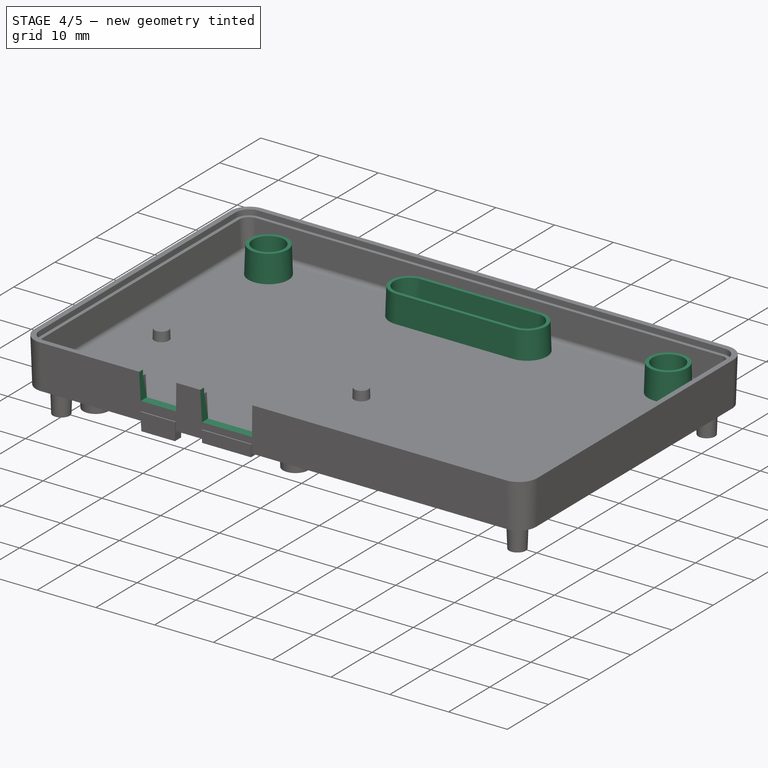
[diagram: stage 4 of 5 — iso view after this stage's code; geometry added in this stage tinted green]
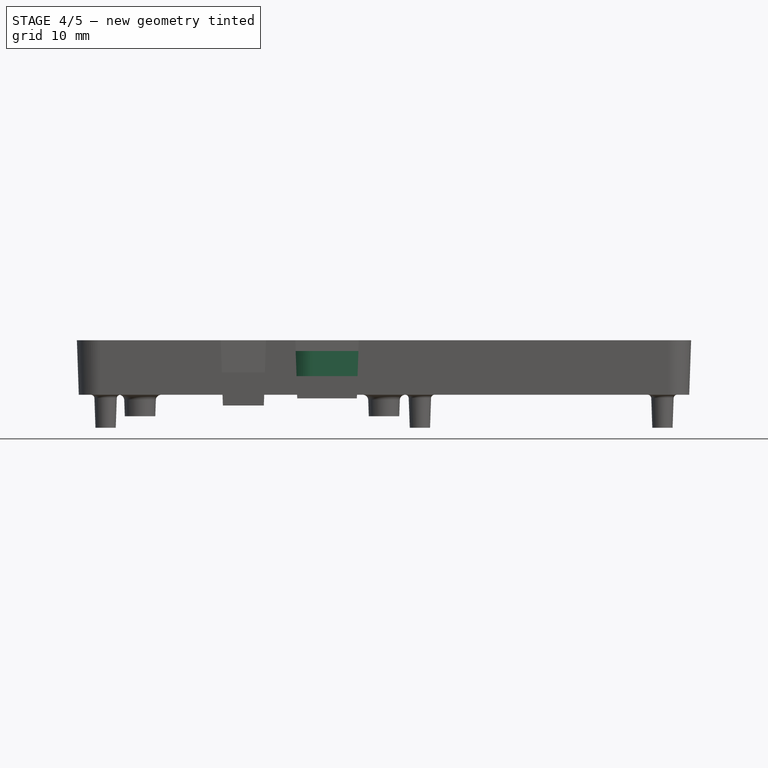
[diagram: stage 4 of 5 — front view after this stage's code; geometry added in this stage tinted green]
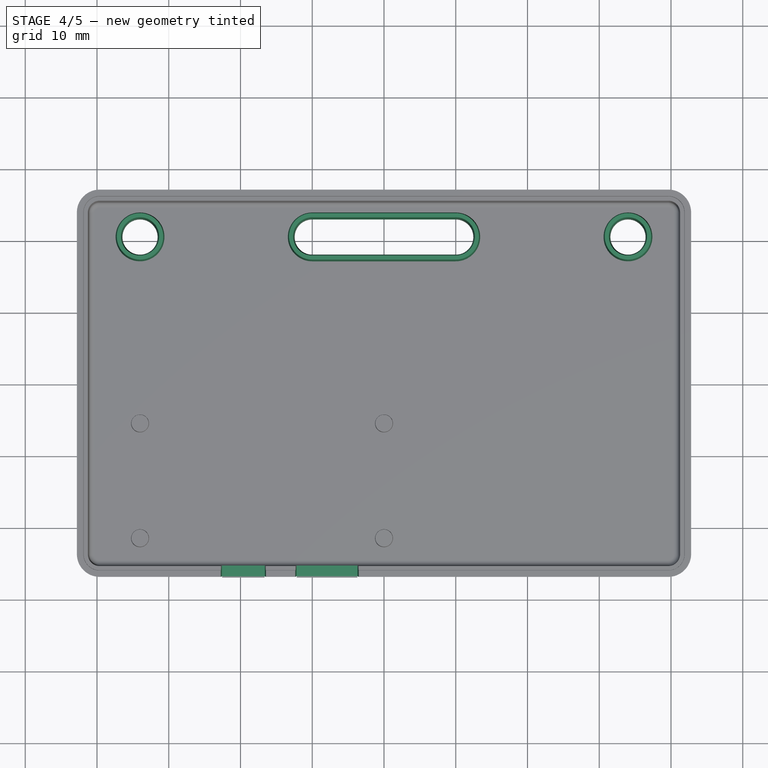
[diagram: stage 4 of 5 — top view after this stage's code; geometry added in this stage tinted green]
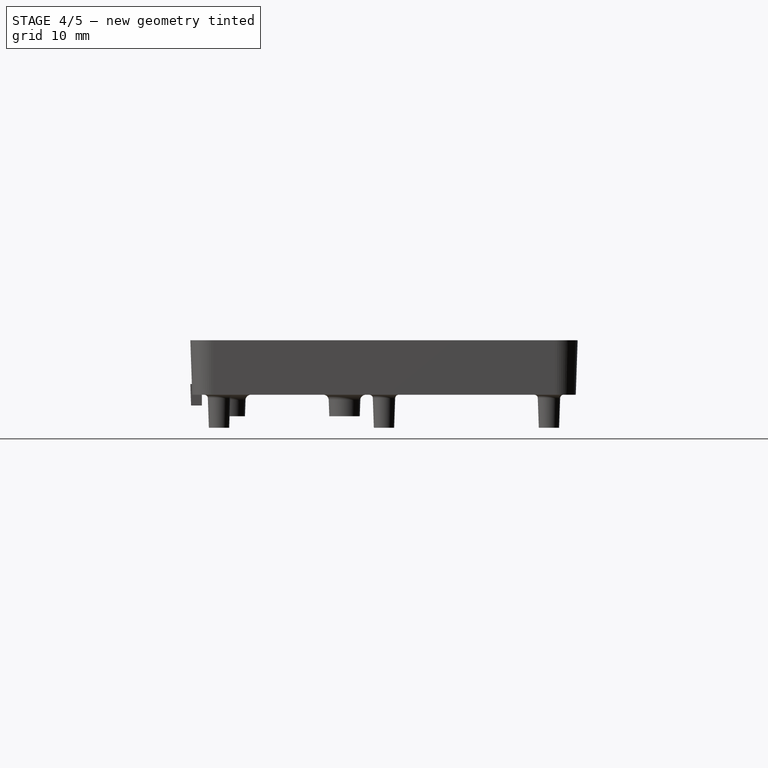
[diagram: stage 4 of 5 — right view after this stage's code; geometry added in this stage tinted green]
FEATURE [PartDesign::Draft] Draft002
  Angle = 2
  Base = -> Pad001 [Face30,Face29,Face27,Face28]
  BaseFeature = -> Pad001
  NeutralPlane = -> DatumPlane001
FEATURE [PartDesign::Pocket] Pocket001
  BaseFeature = -> Draft002
  Length = 5
  Length2 = 100
  Profile = -> Sketch005
  Type = 0
  expr: Length = Spreadsheet.CaseThickness - Spreadsheet.USBHoleY
FEATURE [PartDesign::Pocket] Pocket002
  BaseFeature = -> Pocket001
  Length = 4.5
  Length2 = 100
  Profile = -> Sketch006
  Type = 0
  expr: Length = Spreadsheet.CaseThickness - Spreadsheet.PowerHoleY
FEATURE [PartDesign::Draft] Draft003
  Angle = 2
  Base = -> Pocket002 [Face12,Face40]
  BaseFeature = -> Pocket002
  NeutralPlane = -> Pocket002 [Face35]
  Reversed = true
FEATURE [PartDesign::Draft] Draft004
  Angle = 2
  Base = -> Draft003 [Face38,Face17]
  BaseFeature = -> Draft003
  NeutralPlane = -> Draft003 [Face37]
  Reversed = true
FEATURE [PartDesign::Pad] Pad004
  BaseFeature = -> Draft004
  Length = 4.6
  Length2 = 100
  Profile = -> Sketch014
  Type = 0
  expr: Length = Spreadsheet.CaseThickness - Spreadsheet.WallThickness * 2
FEATURE [PartDesign::Pocket] Pocket003
  BaseFeature = -> Pad004
  Length = 1.5
  Length2 = 4.6
  Profile = -> Sketch013
  Type = 4
  expr: Length2 = Spreadsheet.CaseThickness - Spreadsheet.WallThickness * 2
  expr: Length = Spreadsheet.WallThickness
FEATURE [PartDesign::Draft] Draft007
  Angle = 2
  Base = -> Pocket003 [Face68,Face36,Face39,Face69,Face34,Face35,Face33,Face32,Face65,Face64,Face67,Face66]
  BaseFeature = -> Pocket003
  NeutralPlane = -> DatumPlane001
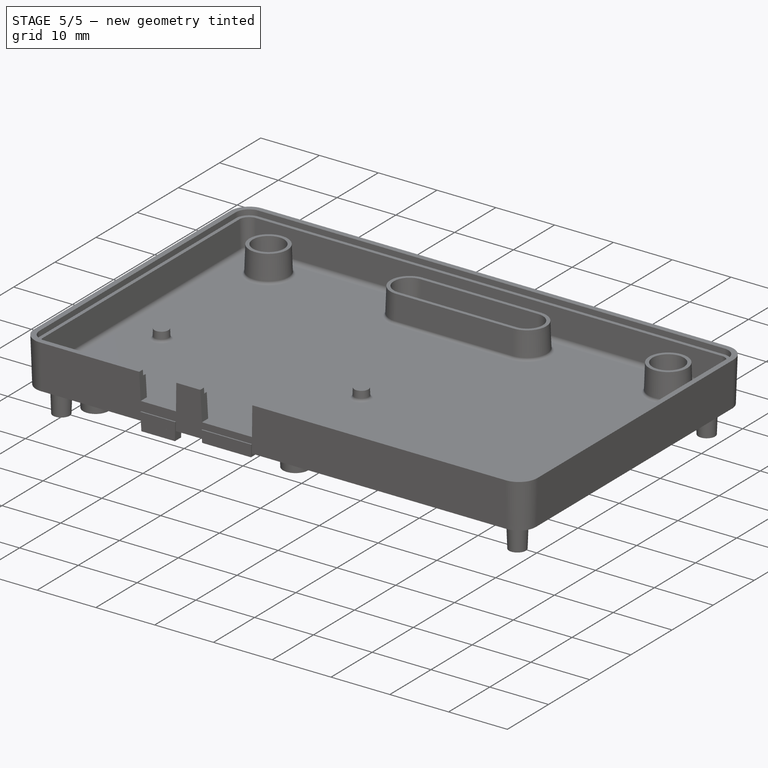
[diagram: stage 5 of 5 — iso view after this stage's code; geometry added in this stage tinted green]
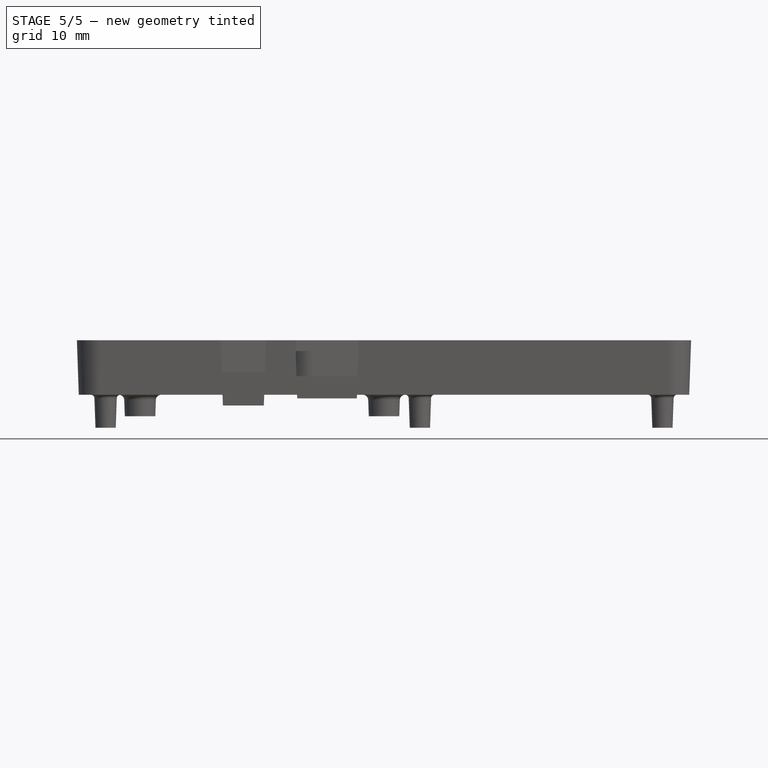
[diagram: stage 5 of 5 — front view after this stage's code; geometry added in this stage tinted green]
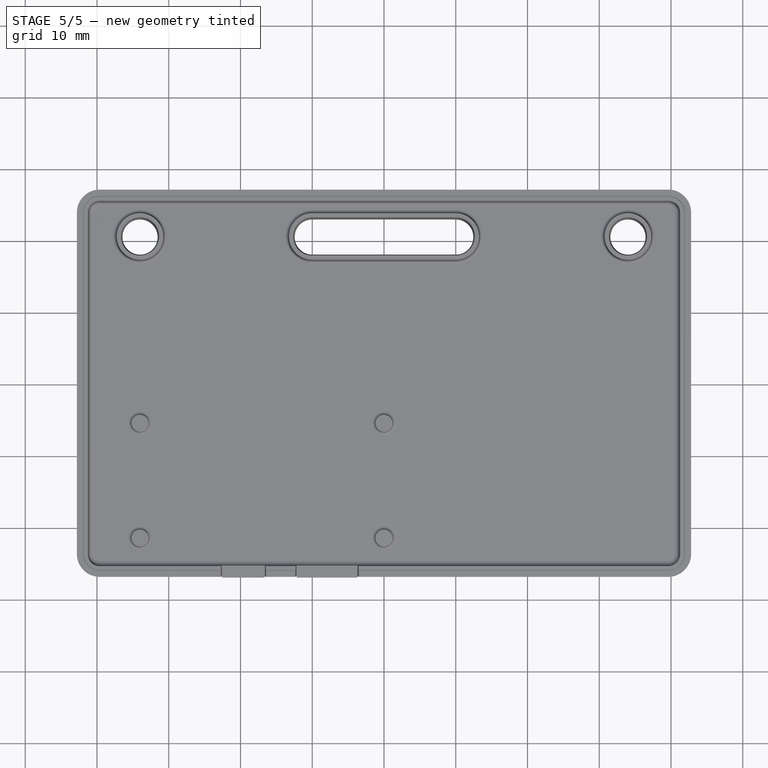
[diagram: stage 5 of 5 — top view after this stage's code; geometry added in this stage tinted green]
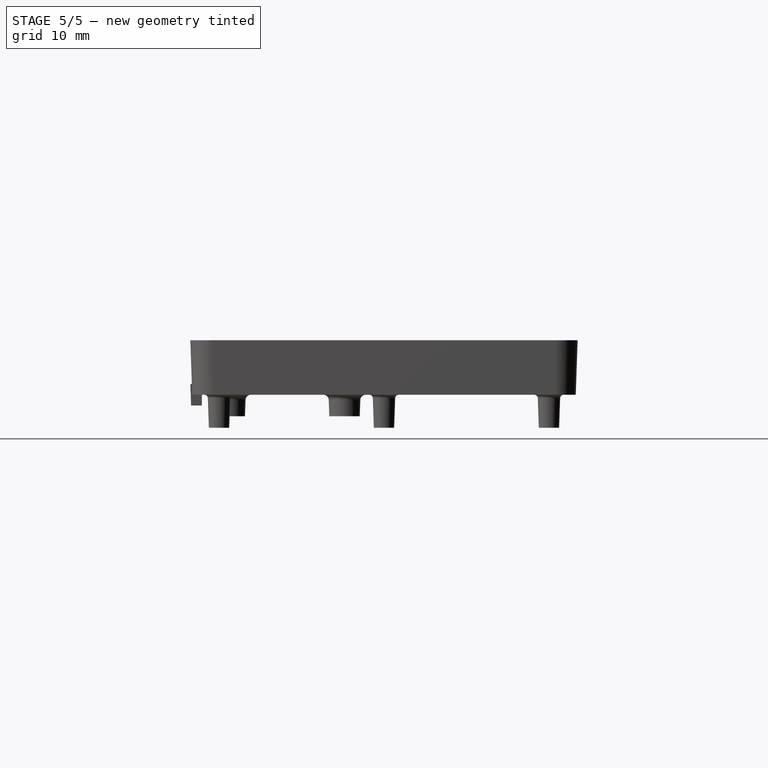
[diagram: stage 5 of 5 — right view after this stage's code; geometry added in this stage tinted green]
FEATURE [PartDesign::Hole] Hole
  BaseFeature = -> Draft007
  Depth = 1.5
  DepthType = 0
  Diameter = 1.76
  DrillPoint = 0
  DrillPointAngle = 118
  HoleCutCountersinkAngle = 90
  HoleCutDepth = 0
  HoleCutDiameter = 3
  HoleCutType = 2
  ModelActualThread = false
  Profile = -> Sketch016
  Tapered = true
  TaperedAngle = 92
  ThreadAngle = 0
  ThreadClass = 0
  ThreadCutOffInner = 0
  ThreadCutOffOuter = 0
  ThreadDirection = 0
  ThreadFit = 0
  ThreadPitch = 0
  ThreadSize = 0
  ThreadType = 0
  Threaded = false
  expr: TaperedAngle = 90 + Spreadsheet.DraftAngle
  expr: HoleCutCountersinkAngle = Spreadsheet.ScrewCountersinkAngle
  expr: HoleCutDiameter = Spreadsheet.ScrewCountersinkDiameter * 1 / mm
  expr: Depth = Spreadsheet.WallThickness
  expr: Diameter = Spreadsheet.ScrewDiameter * 1 / mm
FEATURE [PartDesign::Fillet] Fillet001
  Base = -> Hole [Edge46,Edge51,Edge52,Edge42,Edge45,Edge43,Edge44]
  BaseFeature = -> Hole
  Radius = 0.45
  expr: Radius = Spreadsheet.WallThickness * 0.6 / 2
FEATURE [PartDesign::Hole] Hole001
  BaseFeature = -> Fillet001
  Depth = 1.5
  DepthType = 0
  Diameter = 1.76
  DrillPoint = 0
  DrillPointAngle = 118
  HoleCutCountersinkAngle = 90
  HoleCutDepth = 0
  HoleCutDiameter = 3
  HoleCutType = 2
  ModelActualThread = false
  Profile = -> Sketch021
  Tapered = true
  TaperedAngle = 92
  ThreadAngle = 0
  ThreadClass = 0
  ThreadCutOffInner = 0
  ThreadCutOffOuter = 0
  ThreadDirection = 0
  ThreadFit = 0
  ThreadPitch = 0
  ThreadSize = 0
  ThreadType = 0
  Threaded = false
  expr: HoleCutCountersinkAngle = Spreadsheet.ScrewCountersinkAngle
  expr: HoleCutDiameter = Spreadsheet.ScrewCountersinkDiameter
  expr: Diameter = Spreadsheet.ScrewDiameter
  expr: Depth = Spreadsheet.WallThickness
  expr: TaperedAngle = 90 + Spreadsheet.DraftAngle
FEATURE [PartDesign::Hole] Hole002
  BaseFeature = -> Hole001
  Depth = 1.5
  DepthType = 0
  Diameter = 1.76
  DrillPoint = 0
  DrillPointAngle = 118
  HoleCutCountersinkAngle = 90
  HoleCutDepth = 0
  HoleCutDiameter = 3
  HoleCutType = 2
  ModelActualThread = false
  Profile = -> Sketch022
  Tapered = true
  TaperedAngle = 92
  ThreadAngle = 0
  ThreadClass = 0
  ThreadCutOffInner = 0
  ThreadCutOffOuter = 0
  ThreadDirection = 0
  ThreadFit = 0
  ThreadPitch = 0
  ThreadSize = 0
  ThreadType = 0
  Threaded = false
  expr: TaperedAngle = 90 + Spreadsheet.DraftAngle
  expr: HoleCutCountersinkAngle = Spreadsheet.ScrewCountersinkAngle
  expr: HoleCutDiameter = Spreadsheet.ScrewCountersinkDiameter
  expr: Depth = Spreadsheet.WallThickness
  expr: Diameter = Spreadsheet.ScrewDiameter
FEATURE [PartDesign::Hole] Hole003
  BaseFeature = -> Hole002
  Depth = 1.5
  DepthType = 0
  Diameter = 1.76
  DrillPoint = 0
  DrillPointAngle = 118
  HoleCutCountersinkAngle = 90
  HoleCutDepth = 0
  HoleCutDiameter = 3
  HoleCutType = 2
  ModelActualThread = false
  Profile = -> Sketch023
  Tapered = true
  TaperedAngle = 92
  ThreadAngle = 0
  ThreadClass = 0
  ThreadCutOffInner = 0
  ThreadCutOffOuter = 0
  ThreadDirection = 0
  ThreadFit = 0
  ThreadPitch = 0
  ThreadSize = 0
  ThreadType = 0
  Threaded = false
  expr: TaperedAngle = 90 + Spreadsheet.DraftAngle
  expr: HoleCutCountersinkAngle = Spreadsheet.ScrewCountersinkAngle
  expr: HoleCutDiameter = Spreadsheet.ScrewCountersinkDiameter
  expr: Depth = Spreadsheet.WallThickness
  expr: Diameter = Spreadsheet.ScrewDiameter
FEATURE [PartDesign::Hole] Hole004
  BaseFeature = -> Hole003
  Depth = 1.5
  DepthType = 0
  Diameter = 1.76
  DrillPoint = 0
  DrillPointAngle = 118
  HoleCutCountersinkAngle = 90
  HoleCutDepth = 0
  HoleCutDiameter = 3
  HoleCutType = 2
  ModelActualThread = false
  Profile = -> Sketch024
  Tapered = true
  TaperedAngle = 92
  ThreadAngle = 0
  ThreadClass = 0
  ThreadCutOffInner = 0
  ThreadCutOffOuter = 0
  ThreadDirection = 0
  ThreadFit = 0
  ThreadPitch = 0
  ThreadSize = 0
  ThreadType = 0
  Threaded = false
  expr: TaperedAngle = 90 + Spreadsheet.DraftAngle
  expr: HoleCutCountersinkAngle = Spreadsheet.ScrewCountersinkAngle
  expr: HoleCutDiameter = Spreadsheet.ScrewCountersinkDiameter
  expr: Depth = Spreadsheet.WallThickness
  expr: Diameter = Spreadsheet.ScrewDiameter
FEATURE [PartDesign::Draft] Draft009
  Angle = 2
  Base = -> Hole004 [Face5,Face20,Face18,Face17,Face18]
  BaseFeature = -> Hole004
  NeutralPlane = -> DatumPlane001
  Reversed = true
  expr: Angle = Spreadsheet.DraftAngle
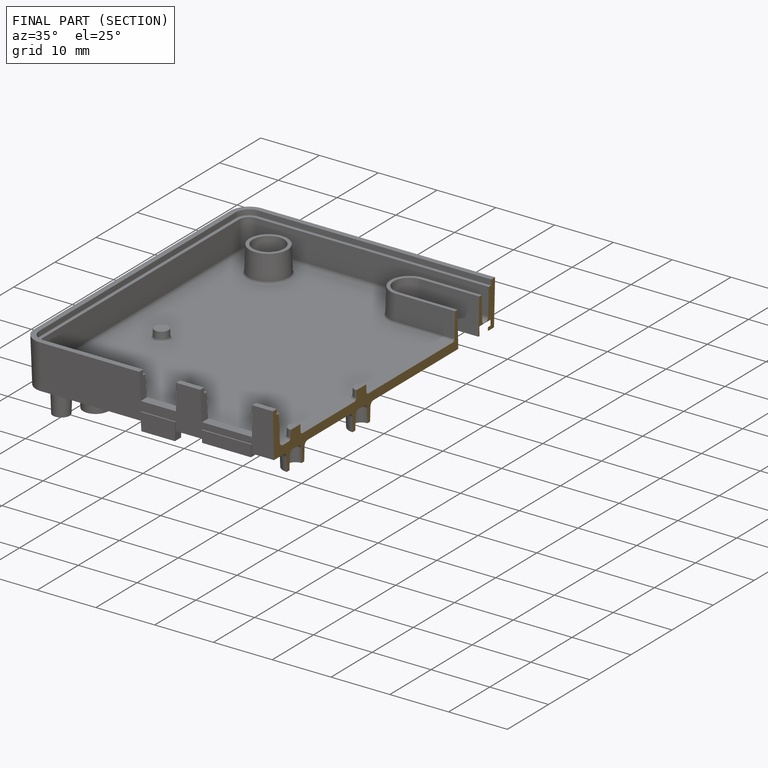
[diagram: finished part — half-section view (interior)]
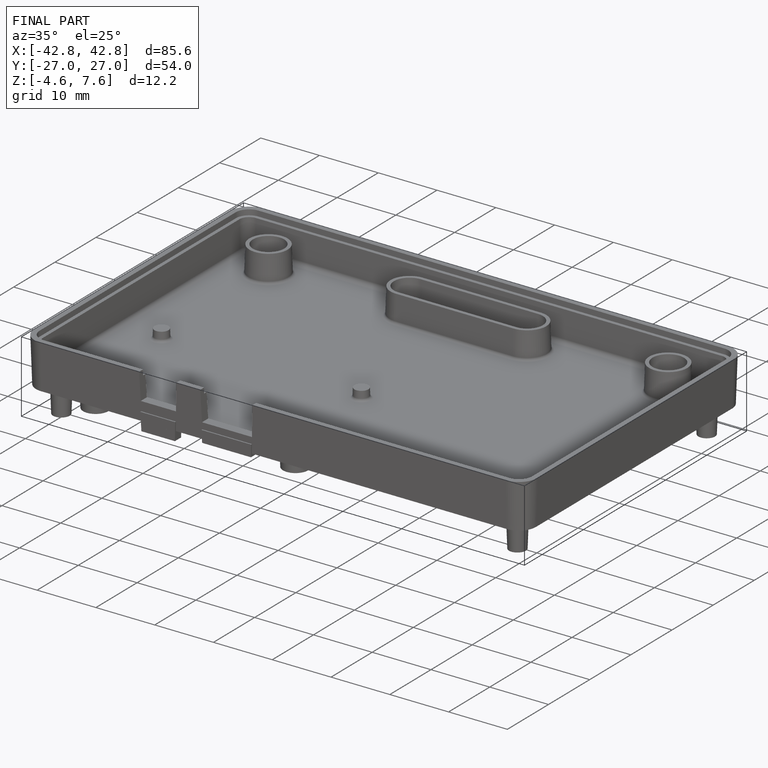
[diagram: finished part — iso view with bounding-box wireframe]
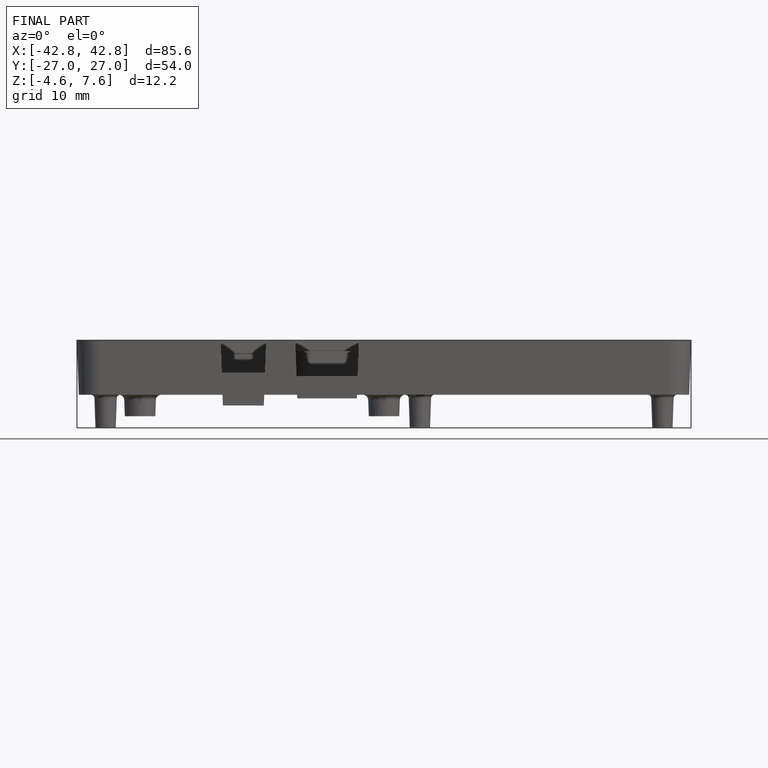
[diagram: finished part — front view with bounding-box wireframe]
